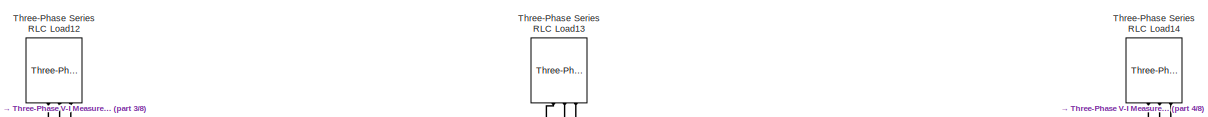
[diagram: root canvas - part 1/8, top center region]
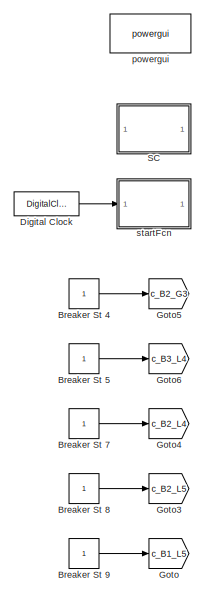
[diagram: root canvas - part 2/8, top left region]
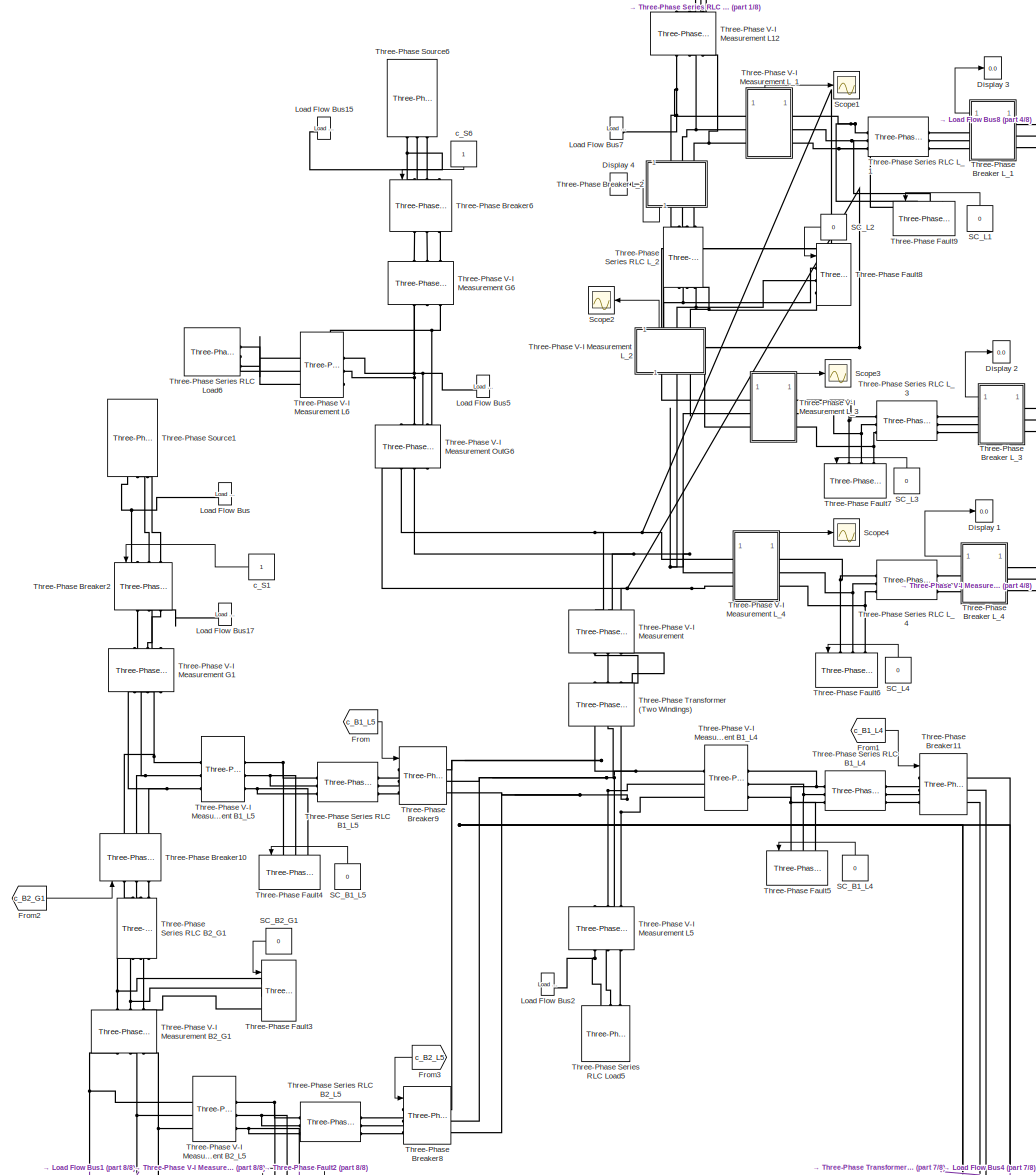
[diagram: root canvas - part 3/8, central region]
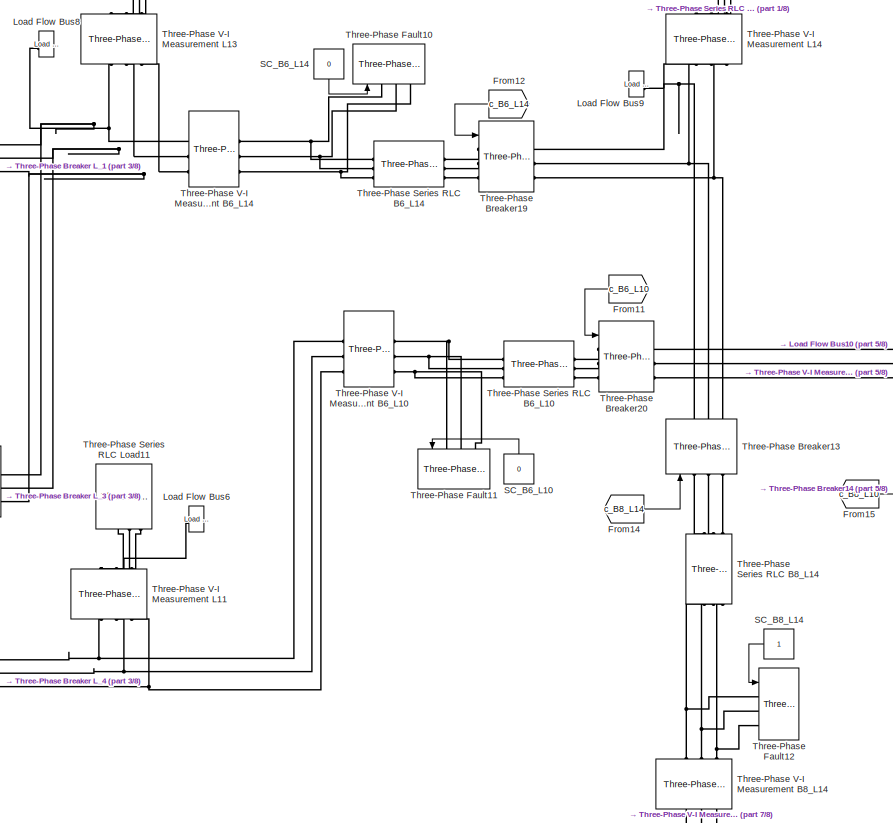
[diagram: root canvas - part 4/8, top right region]
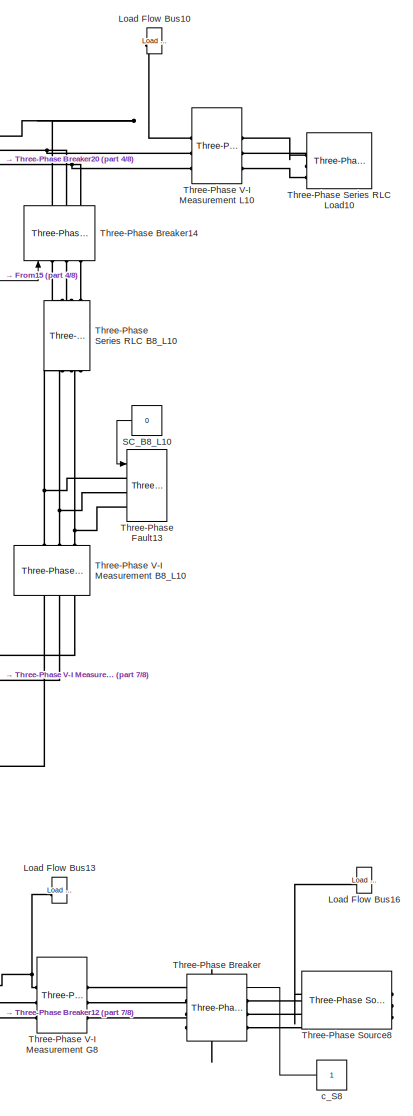
[diagram: root canvas - part 5/8, middle right region]
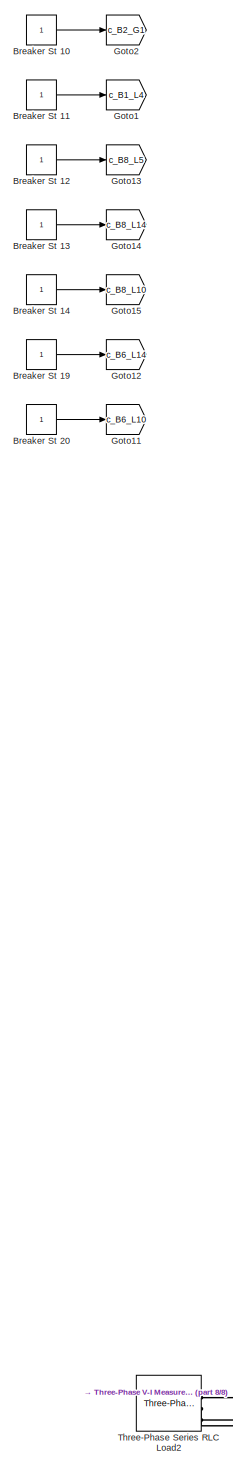
[diagram: root canvas - part 6/8, middle left region]
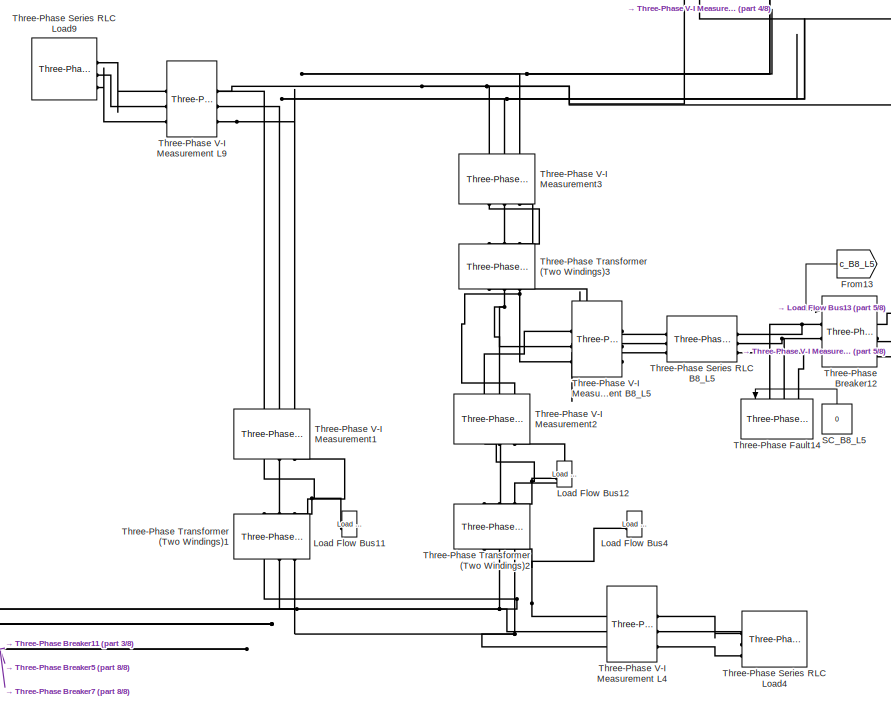
[diagram: root canvas - part 7/8, middle right region]
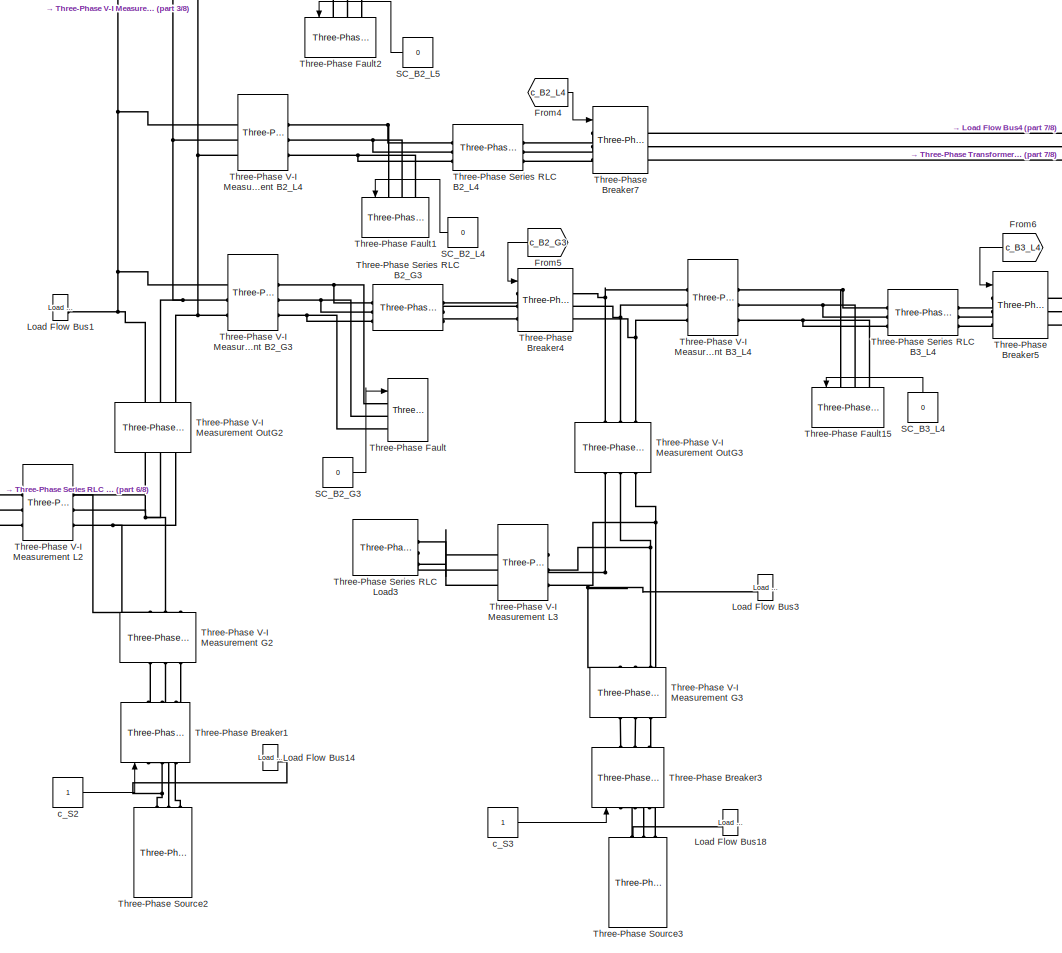
[diagram: root canvas - part 8/8, bottom left region]
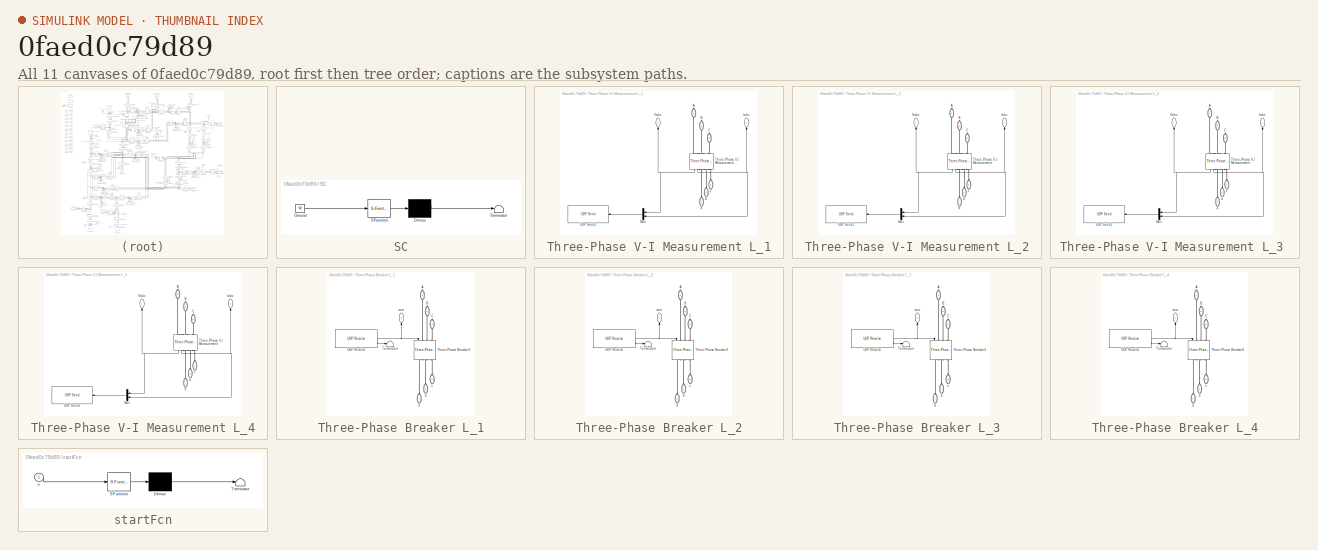
[diagram: thumbnail index - all 11 canvases of the model, root first then tree order]
MODEL slx_0faed0c79d89
KIND model
CONFIG AbsTol = auto
CONFIG EnableMultiTasking = off
CONFIG FixedStep = 1e-3
CONFIG MaxStep = 1e-4
CONFIG MinStep = auto
CONFIG RelTol = 1e-3
CONFIG SampleTimeConstraint = Unconstrained
CONFIG SolverName = ode1
CONFIG StartTime = 0.0
CONFIG StopTime = 600
WORKSPACE source: mxarray member
WORKSPACE pruebaValor = 0
BLOCK [Constant] Breaker St 10
BLOCK [Constant] Breaker St 11
BLOCK [Constant] Breaker St 12
BLOCK [Constant] Breaker St 13
BLOCK [Constant] Breaker St 14
BLOCK [Constant] Breaker St 19
BLOCK [Constant] Breaker St 20
BLOCK [Constant] Breaker St 4
BLOCK [Constant] Breaker St 5
BLOCK [Constant] Breaker St 7
BLOCK [Constant] Breaker St 8
BLOCK [Constant] Breaker St 9
BLOCK [DigitalClock] Digital Clock
  SampleTime = 1e-1
BLOCK [Display] Display 1
  Decimation = 1
  Format = decimal (Stored Integer)
BLOCK [Display] Display 2
  Decimation = 1
  Format = decimal (Stored Integer)
BLOCK [Display] Display 3
  Decimation = 1
  Format = decimal (Stored Integer)
BLOCK [Display] Display 4
  Decimation = 1
  Format = decimal (Stored Integer)
BLOCK [From] From
  GotoTag = c_B1_L5
BLOCK [From] From1
  GotoTag = c_B1_L4
BLOCK [From] From11
  GotoTag = c_B6_L10
  NameLocation = top
BLOCK [From] From12
  GotoTag = c_B6_L14
  NameLocation = top
BLOCK [From] From13
  GotoTag = c_B8_L5
  NameLocation = top
BLOCK [From] From14
  GotoTag = c_B8_L14
BLOCK [From] From15
  GotoTag = c_B8_L10
BLOCK [From] From2
  GotoTag = c_B2_G1
BLOCK [From] From3
  GotoTag = c_B2_L5
  NameLocation = top
BLOCK [From] From4
  GotoTag = c_B2_L4
BLOCK [From] From5
  GotoTag = c_B2_G3
  NameLocation = top
BLOCK [From] From6
  GotoTag = c_B3_L4
  NameLocation = top
BLOCK [Goto] Goto
  GotoTag = c_B1_L5
BLOCK [Goto] Goto1
  GotoTag = c_B1_L4
BLOCK [Goto] Goto11
  GotoTag = c_B6_L10
BLOCK [Goto] Goto12
  GotoTag = c_B6_L14
BLOCK [Goto] Goto13
  GotoTag = c_B8_L5
BLOCK [Goto] Goto14
  GotoTag = c_B8_L14
BLOCK [Goto] Goto15
  GotoTag = c_B8_L10
BLOCK [Goto] Goto2
  GotoTag = c_B2_G1
BLOCK [Goto] Goto3
  GotoTag = c_B2_L5
BLOCK [Goto] Goto4
  GotoTag = c_B2_L4
BLOCK [Goto] Goto5
  GotoTag = c_B2_G3
BLOCK [Goto] Goto6
  GotoTag = c_B3_L4
BLOCK [Reference] Load Flow Bus  REF=spsLoadFlowBusLib/Load Flow Bus
  AttributesFormatString = %<ID>\n%<Vbase>V\n%<VLF>pu\n%<angleLF>deg.
  LibrarySourceBlock = sps_lib/Utilities/Load Flow Bus
  SourceBlock = spsLoadFlowBusLib/Load Flow Bus
  SourceType = Load Flow Bus
BLOCK [Reference] Load Flow Bus1  REF=spsLoadFlowBusLib/Load Flow Bus
  AttributesFormatString = %<ID>\n%<Vbase>V\n%<VLF>pu\n%<angleLF>deg.
  LibrarySourceBlock = sps_lib/Utilities/Load Flow Bus
  NameLocation = top
  SourceBlock = spsLoadFlowBusLib/Load Flow Bus
  SourceType = Load Flow Bus
BLOCK [Reference] Load Flow Bus10  REF=spsLoadFlowBusLib/Load Flow Bus
  AttributesFormatString = %<ID>\n%<Vbase>V\n%<VLF>pu\n%<angleLF>deg.
  LibrarySourceBlock = sps_lib/Utilities/Load Flow Bus
  SourceBlock = spsLoadFlowBusLib/Load Flow Bus
  SourceType = Load Flow Bus
BLOCK [Reference] Load Flow Bus11  REF=spsLoadFlowBusLib/Load Flow Bus
  AttributesFormatString = %<ID>\n%<Vbase>V\n%<VLF>pu\n%<angleLF>deg.
  LibrarySourceBlock = sps_lib/Utilities/Load Flow Bus
  SourceBlock = spsLoadFlowBusLib/Load Flow Bus
  SourceType = Load Flow Bus
BLOCK [Reference] Load Flow Bus12  REF=spsLoadFlowBusLib/Load Flow Bus
  AttributesFormatString = %<ID>\n%<Vbase>V\n%<VLF>pu\n%<angleLF>deg.
  LibrarySourceBlock = sps_lib/Utilities/Load Flow Bus
  SourceBlock = spsLoadFlowBusLib/Load Flow Bus
  SourceType = Load Flow Bus
BLOCK [Reference] Load Flow Bus13  REF=spsLoadFlowBusLib/Load Flow Bus
  AttributesFormatString = %<ID>\n%<Vbase>V\n%<VLF>pu\n%<angleLF>deg.
  LibrarySourceBlock = sps_lib/Utilities/Load Flow Bus
  SourceBlock = spsLoadFlowBusLib/Load Flow Bus
  SourceType = Load Flow Bus
BLOCK [Reference] Load Flow Bus14  REF=spsLoadFlowBusLib/Load Flow Bus
  AttributesFormatString = %<ID>\n%<Vbase>V\n%<VLF>pu\n%<angleLF>deg.
  LibrarySourceBlock = sps_lib/Utilities/Load Flow Bus
  NameLocation = top
  SourceBlock = spsLoadFlowBusLib/Load Flow Bus
  SourceType = Load Flow Bus
BLOCK [Reference] Load Flow Bus15  REF=spsLoadFlowBusLib/Load Flow Bus
  AttributesFormatString = %<ID>\n%<Vbase>V\n%<VLF>pu\n%<angleLF>deg.
  LibrarySourceBlock = sps_lib/Utilities/Load Flow Bus
  SourceBlock = spsLoadFlowBusLib/Load Flow Bus
  SourceType = Load Flow Bus
BLOCK [Reference] Load Flow Bus16  REF=spsLoadFlowBusLib/Load Flow Bus
  AttributesFormatString = %<ID>\n%<Vbase>V\n%<VLF>pu\n%<angleLF>deg.
  LibrarySourceBlock = sps_lib/Utilities/Load Flow Bus
  SourceBlock = spsLoadFlowBusLib/Load Flow Bus
  SourceType = Load Flow Bus
BLOCK [Reference] Load Flow Bus17  REF=spsLoadFlowBusLib/Load Flow Bus
  AttributesFormatString = %<ID>\n%<Vbase>V\n%<VLF>pu\n%<angleLF>deg.
  LibrarySourceBlock = sps_lib/Utilities/Load Flow Bus
  SourceBlock = spsLoadFlowBusLib/Load Flow Bus
  SourceType = Load Flow Bus
BLOCK [Reference] Load Flow Bus18  REF=spsLoadFlowBusLib/Load Flow Bus
  AttributesFormatString = %<ID>\n%<Vbase>V\n%<VLF>pu\n%<angleLF>deg.
  LibrarySourceBlock = sps_lib/Utilities/Load Flow Bus
  SourceBlock = spsLoadFlowBusLib/Load Flow Bus
  SourceType = Load Flow Bus
BLOCK [Reference] Load Flow Bus2  REF=spsLoadFlowBusLib/Load Flow Bus
  AttributesFormatString = %<ID>\n%<Vbase>V\n%<VLF>pu\n%<angleLF>deg.
  LibrarySourceBlock = sps_lib/Utilities/Load Flow Bus
  NameLocation = top
  SourceBlock = spsLoadFlowBusLib/Load Flow Bus
  SourceType = Load Flow Bus
BLOCK [Reference] Load Flow Bus3  REF=spsLoadFlowBusLib/Load Flow Bus
  AttributesFormatString = %<ID>\n%<Vbase>V\n%<VLF>pu\n%<angleLF>deg.
  LibrarySourceBlock = sps_lib/Utilities/Load Flow Bus
  SourceBlock = spsLoadFlowBusLib/Load Flow Bus
  SourceType = Load Flow Bus
BLOCK [Reference] Load Flow Bus4  REF=spsLoadFlowBusLib/Load Flow Bus
  AttributesFormatString = %<ID>\n%<Vbase>V\n%<VLF>pu\n%<angleLF>deg.
  LibrarySourceBlock = sps_lib/Utilities/Load Flow Bus
  SourceBlock = spsLoadFlowBusLib/Load Flow Bus
  SourceType = Load Flow Bus
BLOCK [Reference] Load Flow Bus5  REF=spsLoadFlowBusLib/Load Flow Bus
  AttributesFormatString = %<ID>\n%<Vbase>V\n%<VLF>pu\n%<angleLF>deg.
  LibrarySourceBlock = sps_lib/Utilities/Load Flow Bus
  SourceBlock = spsLoadFlowBusLib/Load Flow Bus
  SourceType = Load Flow Bus
BLOCK [Reference] Load Flow Bus6  REF=spsLoadFlowBusLib/Load Flow Bus
  AttributesFormatString = %<ID>\n%<Vbase>V\n%<VLF>pu\n%<angleLF>deg.
  LibrarySourceBlock = sps_lib/Utilities/Load Flow Bus
  SourceBlock = spsLoadFlowBusLib/Load Flow Bus
  SourceType = Load Flow Bus
BLOCK [Reference] Load Flow Bus7  REF=spsLoadFlowBusLib/Load Flow Bus
  AttributesFormatString = %<ID>\n%<Vbase>V\n%<VLF>pu\n%<angleLF>deg.
  LibrarySourceBlock = sps_lib/Utilities/Load Flow Bus
  NameLocation = top
  SourceBlock = spsLoadFlowBusLib/Load Flow Bus
  SourceType = Load Flow Bus
BLOCK [Reference] Load Flow Bus8  REF=spsLoadFlowBusLib/Load Flow Bus
  AttributesFormatString = %<ID>\n%<Vbase>V\n%<VLF>pu\n%<angleLF>deg.
  LibrarySourceBlock = sps_lib/Utilities/Load Flow Bus
  SourceBlock = spsLoadFlowBusLib/Load Flow Bus
  SourceType = Load Flow Bus
BLOCK [Reference] Load Flow Bus9  REF=spsLoadFlowBusLib/Load Flow Bus
  AttributesFormatString = %<ID>\n%<Vbase>V\n%<VLF>pu\n%<angleLF>deg.
  LibrarySourceBlock = sps_lib/Utilities/Load Flow Bus
  NameLocation = top
  SourceBlock = spsLoadFlowBusLib/Load Flow Bus
  SourceType = Load Flow Bus
BLOCK [SubSystem] SC
  ErrorFcn = Stateflow.Translate.translate
  PermitHierarchicalResolution = ExplicitOnly
  SFBlockType = MATLAB Function
  TreatAsAtomicUnit = on
BLOCK [Demux] SC/ Demux 
  Outputs = 1
BLOCK [Ground] SC/ Ground 
BLOCK [S-Function] SC/ SFunction 
  EnableBusSupport = on
  FunctionName = sf_sfun
  PortCounts = [1 1]
  SFcnIsStateOwnerBlock = off
  SFunctionDeploymentMode = off
  Tag = Stateflow S-Function 1
BLOCK [Terminator] SC/ Terminator 
BLOCK [Constant] SC_B1_L4
  NameLocation = right
  Value = 0
BLOCK [Constant] SC_B1_L5
  NameLocation = right
  Value = 0
BLOCK [Constant] SC_B2_G1
  NameLocation = top
  Value = 0
BLOCK [Constant] SC_B2_G3
  Value = 0
BLOCK [Constant] SC_B2_L4
  NameLocation = top
  Value = 0
BLOCK [Constant] SC_B2_L5
  NameLocation = top
  Value = 0
BLOCK [Constant] SC_B3_L4
  NameLocation = right
  Value = 0
BLOCK [Constant] SC_B6_L10
  NameLocation = right
  Value = 0
BLOCK [Constant] SC_B6_L14
  NameLocation = left
  Value = 0
BLOCK [Constant] SC_B8_L10
  NameLocation = top
  Value = 0
BLOCK [Constant] SC_B8_L14
  NameLocation = top
BLOCK [Constant] SC_B8_L5
  NameLocation = right
  Value = 0
BLOCK [Constant] SC_L1
  NameLocation = right
  Value = 0
BLOCK [Constant] SC_L2
  NameLocation = top
  Value = 0
BLOCK [Constant] SC_L3
  NameLocation = right
  Value = 0
BLOCK [Constant] SC_L4
  NameLocation = right
  Value = 0
BLOCK [Scope] Scope1
  Floating = off
  NumInputPorts = 1
  ScopeSpecificationString = Simulink.scopes.TimeScopeBlockCfg('CurrentConfiguration', extmgr.ConfigurationSet(extmgr.Configuration('Core','General UI',true),extmgr.Configuration('Core','Source UI',true),extmgr.Configuration('Sources','WiredSimulink',true,'DataLoggingVariableName','ScopeData4'),extmgr.Configuration('Visuals','Time Domain',true,'SerializedDisplays',{struct('MinYLimReal','-343.20446','MaxYLimReal','341.61736','...<+1569ch>
BLOCK [Scope] Scope2
  Floating = off
  NumInputPorts = 1
  ScopeSpecificationString = Simulink.scopes.TimeScopeBlockCfg('CurrentConfiguration', extmgr.ConfigurationSet(extmgr.Configuration('Core','General UI',true),extmgr.Configuration('Core','Source UI',true),extmgr.Configuration('Sources','WiredSimulink',true,'DataLoggingVariableName','ScopeData1'),extmgr.Configuration('Visuals','Time Domain',true,'SerializedDisplays',{struct('MinYLimReal','-2113.17792','MaxYLimReal','2445.32512'...<+1610ch>
BLOCK [Scope] Scope3
  Floating = off
  NumInputPorts = 1
  ScopeSpecificationString = Simulink.scopes.TimeScopeBlockCfg('CurrentConfiguration', extmgr.ConfigurationSet(extmgr.Configuration('Core','General UI',true),extmgr.Configuration('Core','Source UI',true),extmgr.Configuration('Sources','WiredSimulink',true,'DataLoggingVariableName','ScopeData2'),extmgr.Configuration('Visuals','Time Domain',true,'SerializedDisplays',{struct('MinYLimReal','-2113.17792','MaxYLimReal','2445.32512'...<+1610ch>
BLOCK [Scope] Scope4
  Floating = off
  NumInputPorts = 1
  ScopeSpecificationString = Simulink.scopes.TimeScopeBlockCfg('CurrentConfiguration', extmgr.ConfigurationSet(extmgr.Configuration('Core','General UI',true),extmgr.Configuration('Core','Source UI',true),extmgr.Configuration('Sources','WiredSimulink',true,'DataLoggingVariableName','ScopeData3'),extmgr.Configuration('Visuals','Time Domain',true,'SerializedDisplays',{struct('MinYLimReal','-2113.17792','MaxYLimReal','2445.32512'...<+1610ch>
BLOCK [Reference] Three-Phase Breaker  REF=spsThreePhaseBreakerLib/Three-Phase Breaker
  LibrarySourceBlock = sps_lib/Power Grid Elements/Three-Phase Breaker
  NameLocation = top
  SourceBlock = spsThreePhaseBreakerLib/Three-Phase Breaker
  SourceType = Three-Phase Breaker
BLOCK [SubSystem] Three-Phase Breaker L_1
BLOCK [PMIOPort] Three-Phase Breaker L_1/A
  NameLocation = right
  Port = 4
  Side = Right
BLOCK [PMIOPort] Three-Phase Breaker L_1/B
  NameLocation = right
  Port = 5
  Side = Right
BLOCK [PMIOPort] Three-Phase Breaker L_1/C
  NameLocation = right
  Port = 6
  Side = Right
BLOCK [Terminator] Three-Phase Breaker L_1/Terminator
BLOCK [Reference] Three-Phase Breaker L_1/Three-Phase Breaker3  REF=spsThreePhaseBreakerLib/Three-Phase Breaker
  NameLocation = right
  SourceBlock = spsThreePhaseBreakerLib/Three-Phase Breaker
  SourceType = Three-Phase Breaker
BLOCK [Reference] Three-Phase Breaker L_1/UDP Receive  REF=instrumentlib/UDP Receive
  SourceBlock = instrumentlib/UDP Receive
  SourceType = instrument.system.UDPReceive
BLOCK [PMIOPort] Three-Phase Breaker L_1/a
  NameLocation = right
  Side = Left
BLOCK [PMIOPort] Three-Phase Breaker L_1/b
  NameLocation = right
  Port = 2
  Side = Left
BLOCK [PMIOPort] Three-Phase Breaker L_1/c
  NameLocation = right
  Port = 3
  Side = Left
BLOCK [Outport] Three-Phase Breaker L_1/com
  NameLocation = right
BLOCK [SubSystem] Three-Phase Breaker L_2
  NameLocation = right
BLOCK [PMIOPort] Three-Phase Breaker L_2/A
  NameLocation = right
  Port = 4
  Side = Right
BLOCK [PMIOPort] Three-Phase Breaker L_2/B
  NameLocation = right
  Port = 5
  Side = Right
BLOCK [PMIOPort] Three-Phase Breaker L_2/C
  NameLocation = right
  Port = 6
  Side = Right
BLOCK [Terminator] Three-Phase Breaker L_2/Terminator
BLOCK [Reference] Three-Phase Breaker L_2/Three-Phase Breaker3  REF=spsThreePhaseBreakerLib/Three-Phase Breaker
  NameLocation = right
  SourceBlock = spsThreePhaseBreakerLib/Three-Phase Breaker
  SourceType = Three-Phase Breaker
BLOCK [Reference] Three-Phase Breaker L_2/UDP Receive  REF=instrumentlib/UDP Receive
  SourceBlock = instrumentlib/UDP Receive
  SourceType = instrument.system.UDPReceive
BLOCK [PMIOPort] Three-Phase Breaker L_2/a
  NameLocation = right
  Side = Left
BLOCK [PMIOPort] Three-Phase Breaker L_2/b
  NameLocation = right
  Port = 2
  Side = Left
BLOCK [PMIOPort] Three-Phase Breaker L_2/c
  NameLocation = right
  Port = 3
  Side = Left
BLOCK [Outport] Three-Phase Breaker L_2/com
  NameLocation = right
BLOCK [SubSystem] Three-Phase Breaker L_3
BLOCK [PMIOPort] Three-Phase Breaker L_3/A
  NameLocation = right
  Port = 4
  Side = Right
BLOCK [PMIOPort] Three-Phase Breaker L_3/B
  NameLocation = right
  Port = 5
  Side = Right
BLOCK [PMIOPort] Three-Phase Breaker L_3/C
  NameLocation = right
  Port = 6
  Side = Right
BLOCK [Terminator] Three-Phase Breaker L_3/Terminator
BLOCK [Reference] Three-Phase Breaker L_3/Three-Phase Breaker3  REF=spsThreePhaseBreakerLib/Three-Phase Breaker
  NameLocation = right
  SourceBlock = spsThreePhaseBreakerLib/Three-Phase Breaker
  SourceType = Three-Phase Breaker
BLOCK [Reference] Three-Phase Breaker L_3/UDP Receive  REF=instrumentlib/UDP Receive
  SourceBlock = instrumentlib/UDP Receive
  SourceType = instrument.system.UDPReceive
BLOCK [PMIOPort] Three-Phase Breaker L_3/a
  NameLocation = right
  Side = Left
BLOCK [PMIOPort] Three-Phase Breaker L_3/b
  NameLocation = right
  Port = 2
  Side = Left
BLOCK [PMIOPort] Three-Phase Breaker L_3/c
  NameLocation = right
  Port = 3
  Side = Left
BLOCK [Outport] Three-Phase Breaker L_3/com
  NameLocation = right
BLOCK [SubSystem] Three-Phase Breaker L_4
  NameLocation = top
BLOCK [PMIOPort] Three-Phase Breaker L_4/A
  NameLocation = right
  Port = 4
  Side = Right
BLOCK [PMIOPort] Three-Phase Breaker L_4/B
  NameLocation = right
  Port = 5
  Side = Right
BLOCK [PMIOPort] Three-Phase Breaker L_4/C
  NameLocation = right
  Port = 6
  Side = Right
BLOCK [Terminator] Three-Phase Breaker L_4/Terminator
BLOCK [Reference] Three-Phase Breaker L_4/Three-Phase Breaker3  REF=spsThreePhaseBreakerLib/Three-Phase Breaker
  NameLocation = right
  SourceBlock = spsThreePhaseBreakerLib/Three-Phase Breaker
  SourceType = Three-Phase Breaker
BLOCK [Reference] Three-Phase Breaker L_4/UDP Receive  REF=instrumentlib/UDP Receive
  SourceBlock = instrumentlib/UDP Receive
  SourceType = instrument.system.UDPReceive
BLOCK [PMIOPort] Three-Phase Breaker L_4/a
  NameLocation = right
  Side = Left
BLOCK [PMIOPort] Three-Phase Breaker L_4/b
  NameLocation = right
  Port = 2
  Side = Left
BLOCK [PMIOPort] Three-Phase Breaker L_4/c
  NameLocation = right
  Port = 3
  Side = Left
BLOCK [Outport] Three-Phase Breaker L_4/com
  NameLocation = right
BLOCK [Reference] Three-Phase Breaker1  REF=spsThreePhaseBreakerLib/Three-Phase Breaker
  LibrarySourceBlock = sps_lib/Power Grid Elements/Three-Phase Breaker
  NameLocation = right
  SourceBlock = spsThreePhaseBreakerLib/Three-Phase Breaker
  SourceType = Three-Phase Breaker
BLOCK [Reference] Three-Phase Breaker10  REF=spsThreePhaseBreakerLib/Three-Phase Breaker
  LibrarySourceBlock = sps_lib/Power Grid Elements/Three-Phase Breaker
  NameLocation = right
  SourceBlock = spsThreePhaseBreakerLib/Three-Phase Breaker
  SourceType = Three-Phase Breaker
BLOCK [Reference] Three-Phase Breaker11  REF=spsThreePhaseBreakerLib/Three-Phase Breaker
  LibrarySourceBlock = sps_lib/Power Grid Elements/Three-Phase Breaker
  SourceBlock = spsThreePhaseBreakerLib/Three-Phase Breaker
  SourceType = Three-Phase Breaker
BLOCK [Reference] Three-Phase Breaker12  REF=spsThreePhaseBreakerLib/Three-Phase Breaker
  LibrarySourceBlock = sps_lib/Power Grid Elements/Three-Phase Breaker
  SourceBlock = spsThreePhaseBreakerLib/Three-Phase Breaker
  SourceType = Three-Phase Breaker
BLOCK [Reference] Three-Phase Breaker13  REF=spsThreePhaseBreakerLib/Three-Phase Breaker
  LibrarySourceBlock = sps_lib/Power Grid Elements/Three-Phase Breaker
  NameLocation = right
  SourceBlock = spsThreePhaseBreakerLib/Three-Phase Breaker
  SourceType = Three-Phase Breaker
BLOCK [Reference] Three-Phase Breaker14  REF=spsThreePhaseBreakerLib/Three-Phase Breaker
  LibrarySourceBlock = sps_lib/Power Grid Elements/Three-Phase Breaker
  NameLocation = right
  SourceBlock = spsThreePhaseBreakerLib/Three-Phase Breaker
  SourceType = Three-Phase Breaker
BLOCK [Reference] Three-Phase Breaker19  REF=spsThreePhaseBreakerLib/Three-Phase Breaker
  LibrarySourceBlock = sps_lib/Power Grid Elements/Three-Phase Breaker
  SourceBlock = spsThreePhaseBreakerLib/Three-Phase Breaker
  SourceType = Three-Phase Breaker
BLOCK [Reference] Three-Phase Breaker2  REF=spsThreePhaseBreakerLib/Three-Phase Breaker
  LibrarySourceBlock = sps_lib/Power Grid Elements/Three-Phase Breaker
  NameLocation = left
  SourceBlock = spsThreePhaseBreakerLib/Three-Phase Breaker
  SourceType = Three-Phase Breaker
BLOCK [Reference] Three-Phase Breaker20  REF=spsThreePhaseBreakerLib/Three-Phase Breaker
  LibrarySourceBlock = sps_lib/Power Grid Elements/Three-Phase Breaker
  SourceBlock = spsThreePhaseBreakerLib/Three-Phase Breaker
  SourceType = Three-Phase Breaker
BLOCK [Reference] Three-Phase Breaker3  REF=spsThreePhaseBreakerLib/Three-Phase Breaker
  LibrarySourceBlock = sps_lib/Power Grid Elements/Three-Phase Breaker
  NameLocation = right
  SourceBlock = spsThreePhaseBreakerLib/Three-Phase Breaker
  SourceType = Three-Phase Breaker
BLOCK [Reference] Three-Phase Breaker4  REF=spsThreePhaseBreakerLib/Three-Phase Breaker
  LibrarySourceBlock = sps_lib/Power Grid Elements/Three-Phase Breaker
  SourceBlock = spsThreePhaseBreakerLib/Three-Phase Breaker
  SourceType = Three-Phase Breaker
BLOCK [Reference] Three-Phase Breaker5  REF=spsThreePhaseBreakerLib/Three-Phase Breaker
  LibrarySourceBlock = sps_lib/Power Grid Elements/Three-Phase Breaker
  SourceBlock = spsThreePhaseBreakerLib/Three-Phase Breaker
  SourceType = Three-Phase Breaker
BLOCK [Reference] Three-Phase Breaker6  REF=spsThreePhaseBreakerLib/Three-Phase Breaker
  LibrarySourceBlock = sps_lib/Power Grid Elements/Three-Phase Breaker
  NameLocation = left
  SourceBlock = spsThreePhaseBreakerLib/Three-Phase Breaker
  SourceType = Three-Phase Breaker
BLOCK [Reference] Three-Phase Breaker7  REF=spsThreePhaseBreakerLib/Three-Phase Breaker
  LibrarySourceBlock = sps_lib/Power Grid Elements/Three-Phase Breaker
  SourceBlock = spsThreePhaseBreakerLib/Three-Phase Breaker
  SourceType = Three-Phase Breaker
BLOCK [Reference] Three-Phase Breaker8  REF=spsThreePhaseBreakerLib/Three-Phase Breaker
  LibrarySourceBlock = sps_lib/Power Grid Elements/Three-Phase Breaker
  SourceBlock = spsThreePhaseBreakerLib/Three-Phase Breaker
  SourceType = Three-Phase Breaker
BLOCK [Reference] Three-Phase Breaker9  REF=spsThreePhaseBreakerLib/Three-Phase Breaker
  LibrarySourceBlock = sps_lib/Power Grid Elements/Three-Phase Breaker
  SourceBlock = spsThreePhaseBreakerLib/Three-Phase Breaker
  SourceType = Three-Phase Breaker
BLOCK [Reference] Three-Phase Fault  REF=spsThreePhaseFaultLib/Three-Phase Fault
  LibrarySourceBlock = sps_lib/Power Grid Elements/Three-Phase Fault
  SourceBlock = spsThreePhaseFaultLib/Three-Phase Fault
  SourceType = Three-Phase Fault
BLOCK [Reference] Three-Phase Fault1  REF=spsThreePhaseFaultLib/Three-Phase Fault
  LibrarySourceBlock = sps_lib/Power Grid Elements/Three-Phase Fault
  NameLocation = left
  SourceBlock = spsThreePhaseFaultLib/Three-Phase Fault
  SourceType = Three-Phase Fault
BLOCK [Reference] Three-Phase Fault10  REF=spsThreePhaseFaultLib/Three-Phase Fault
  LibrarySourceBlock = sps_lib/Power Grid Elements/Three-Phase Fault
  NameLocation = right
  SourceBlock = spsThreePhaseFaultLib/Three-Phase Fault
  SourceType = Three-Phase Fault
BLOCK [Reference] Three-Phase Fault11  REF=spsThreePhaseFaultLib/Three-Phase Fault
  LibrarySourceBlock = sps_lib/Power Grid Elements/Three-Phase Fault
  NameLocation = left
  SourceBlock = spsThreePhaseFaultLib/Three-Phase Fault
  SourceType = Three-Phase Fault
BLOCK [Reference] Three-Phase Fault12  REF=spsThreePhaseFaultLib/Three-Phase Fault
  LibrarySourceBlock = sps_lib/Power Grid Elements/Three-Phase Fault
  SourceBlock = spsThreePhaseFaultLib/Three-Phase Fault
  SourceType = Three-Phase Fault
BLOCK [Reference] Three-Phase Fault13  REF=spsThreePhaseFaultLib/Three-Phase Fault
  LibrarySourceBlock = sps_lib/Power Grid Elements/Three-Phase Fault
  SourceBlock = spsThreePhaseFaultLib/Three-Phase Fault
  SourceType = Three-Phase Fault
BLOCK [Reference] Three-Phase Fault14  REF=spsThreePhaseFaultLib/Three-Phase Fault
  LibrarySourceBlock = sps_lib/Power Grid Elements/Three-Phase Fault
  NameLocation = left
  SourceBlock = spsThreePhaseFaultLib/Three-Phase Fault
  SourceType = Three-Phase Fault
BLOCK [Reference] Three-Phase Fault15  REF=spsThreePhaseFaultLib/Three-Phase Fault
  LibrarySourceBlock = sps_lib/Power Grid Elements/Three-Phase Fault
  NameLocation = left
  SourceBlock = spsThreePhaseFaultLib/Three-Phase Fault
  SourceType = Three-Phase Fault
BLOCK [Reference] Three-Phase Fault2  REF=spsThreePhaseFaultLib/Three-Phase Fault
  LibrarySourceBlock = sps_lib/Power Grid Elements/Three-Phase Fault
  NameLocation = left
  SourceBlock = spsThreePhaseFaultLib/Three-Phase Fault
  SourceType = Three-Phase Fault
BLOCK [Reference] Three-Phase Fault3  REF=spsThreePhaseFaultLib/Three-Phase Fault
  LibrarySourceBlock = sps_lib/Power Grid Elements/Three-Phase Fault
  SourceBlock = spsThreePhaseFaultLib/Three-Phase Fault
  SourceType = Three-Phase Fault
BLOCK [Reference] Three-Phase Fault4  REF=spsThreePhaseFaultLib/Three-Phase Fault
  LibrarySourceBlock = sps_lib/Power Grid Elements/Three-Phase Fault
  NameLocation = left
  SourceBlock = spsThreePhaseFaultLib/Three-Phase Fault
  SourceType = Three-Phase Fault
BLOCK [Reference] Three-Phase Fault5  REF=spsThreePhaseFaultLib/Three-Phase Fault
  LibrarySourceBlock = sps_lib/Power Grid Elements/Three-Phase Fault
  NameLocation = left
  SourceBlock = spsThreePhaseFaultLib/Three-Phase Fault
  SourceType = Three-Phase Fault
BLOCK [Reference] Three-Phase Fault6  REF=spsThreePhaseFaultLib/Three-Phase Fault
  LibrarySourceBlock = sps_lib/Power Grid Elements/Three-Phase Fault
  NameLocation = left
  SourceBlock = spsThreePhaseFaultLib/Three-Phase Fault
  SourceType = Three-Phase Fault
BLOCK [Reference] Three-Phase Fault7  REF=spsThreePhaseFaultLib/Three-Phase Fault
  LibrarySourceBlock = sps_lib/Power Grid Elements/Three-Phase Fault
  NameLocation = left
  SourceBlock = spsThreePhaseFaultLib/Three-Phase Fault
  SourceType = Three-Phase Fault
BLOCK [Reference] Three-Phase Fault8  REF=spsThreePhaseFaultLib/Three-Phase Fault
  LibrarySourceBlock = sps_lib/Power Grid Elements/Three-Phase Fault
  SourceBlock = spsThreePhaseFaultLib/Three-Phase Fault
  SourceType = Three-Phase Fault
BLOCK [Reference] Three-Phase Fault9  REF=spsThreePhaseFaultLib/Three-Phase Fault
  LibrarySourceBlock = sps_lib/Power Grid Elements/Three-Phase Fault
  NameLocation = left
  SourceBlock = spsThreePhaseFaultLib/Three-Phase Fault
  SourceType = Three-Phase Fault
BLOCK [Reference] Three-Phase Series RLC B1_L4  REF=spsThreePhaseSeriesRLCBranchLib/Three-Phase
Series RLC Branch
  AttributesFormatString = \n
  LibrarySourceBlock = sps_lib/Passives/Three-Phase\nSeries RLC Branch
  SourceBlock = spsThreePhaseSeriesRLCBranchLib/Three-Phase\nSeries RLC Branch
  SourceType = Three-Phase Series RLC Branch
BLOCK [Reference] Three-Phase Series RLC B1_L5  REF=spsThreePhaseSeriesRLCBranchLib/Three-Phase
Series RLC Branch
  AttributesFormatString = \n
  LibrarySourceBlock = sps_lib/Passives/Three-Phase\nSeries RLC Branch
  SourceBlock = spsThreePhaseSeriesRLCBranchLib/Three-Phase\nSeries RLC Branch
  SourceType = Three-Phase Series RLC Branch
BLOCK [Reference] Three-Phase Series RLC B2_G1  REF=spsThreePhaseSeriesRLCBranchLib/Three-Phase
Series RLC Branch
  AttributesFormatString = \n
  LibrarySourceBlock = sps_lib/Passives/Three-Phase\nSeries RLC Branch
  NameLocation = right
  SourceBlock = spsThreePhaseSeriesRLCBranchLib/Three-Phase\nSeries RLC Branch
  SourceType = Three-Phase Series RLC Branch
BLOCK [Reference] Three-Phase Series RLC B2_G3  REF=spsThreePhaseSeriesRLCBranchLib/Three-Phase
Series RLC Branch
  AttributesFormatString = \n
  LibrarySourceBlock = sps_lib/Passives/Three-Phase\nSeries RLC Branch
  SourceBlock = spsThreePhaseSeriesRLCBranchLib/Three-Phase\nSeries RLC Branch
  SourceType = Three-Phase Series RLC Branch
BLOCK [Reference] Three-Phase Series RLC B2_L4  REF=spsThreePhaseSeriesRLCBranchLib/Three-Phase
Series RLC Branch
  AttributesFormatString = \n
  LibrarySourceBlock = sps_lib/Passives/Three-Phase\nSeries RLC Branch
  SourceBlock = spsThreePhaseSeriesRLCBranchLib/Three-Phase\nSeries RLC Branch
  SourceType = Three-Phase Series RLC Branch
BLOCK [Reference] Three-Phase Series RLC B2_L5  REF=spsThreePhaseSeriesRLCBranchLib/Three-Phase
Series RLC Branch
  AttributesFormatString = \n
  LibrarySourceBlock = sps_lib/Passives/Three-Phase\nSeries RLC Branch
  SourceBlock = spsThreePhaseSeriesRLCBranchLib/Three-Phase\nSeries RLC Branch
  SourceType = Three-Phase Series RLC Branch
BLOCK [Reference] Three-Phase Series RLC B3_L4  REF=spsThreePhaseSeriesRLCBranchLib/Three-Phase
Series RLC Branch
  AttributesFormatString = \n
  LibrarySourceBlock = sps_lib/Passives/Three-Phase\nSeries RLC Branch
  SourceBlock = spsThreePhaseSeriesRLCBranchLib/Three-Phase\nSeries RLC Branch
  SourceType = Three-Phase Series RLC Branch
BLOCK [Reference] Three-Phase Series RLC B6_L10  REF=spsThreePhaseSeriesRLCBranchLib/Three-Phase
Series RLC Branch
  AttributesFormatString = \n
  LibrarySourceBlock = sps_lib/Passives/Three-Phase\nSeries RLC Branch
  SourceBlock = spsThreePhaseSeriesRLCBranchLib/Three-Phase\nSeries RLC Branch
  SourceType = Three-Phase Series RLC Branch
BLOCK [Reference] Three-Phase Series RLC B6_L14  REF=spsThreePhaseSeriesRLCBranchLib/Three-Phase
Series RLC Branch
  AttributesFormatString = \n
  LibrarySourceBlock = sps_lib/Passives/Three-Phase\nSeries RLC Branch
  SourceBlock = spsThreePhaseSeriesRLCBranchLib/Three-Phase\nSeries RLC Branch
  SourceType = Three-Phase Series RLC Branch
BLOCK [Reference] Three-Phase Series RLC B8_L10  REF=spsThreePhaseSeriesRLCBranchLib/Three-Phase
Series RLC Branch
  AttributesFormatString = \n
  LibrarySourceBlock = sps_lib/Passives/Three-Phase\nSeries RLC Branch
  NameLocation = right
  SourceBlock = spsThreePhaseSeriesRLCBranchLib/Three-Phase\nSeries RLC Branch
  SourceType = Three-Phase Series RLC Branch
BLOCK [Reference] Three-Phase Series RLC B8_L14  REF=spsThreePhaseSeriesRLCBranchLib/Three-Phase
Series RLC Branch
  AttributesFormatString = \n
  LibrarySourceBlock = sps_lib/Passives/Three-Phase\nSeries RLC Branch
  NameLocation = right
  SourceBlock = spsThreePhaseSeriesRLCBranchLib/Three-Phase\nSeries RLC Branch
  SourceType = Three-Phase Series RLC Branch
BLOCK [Reference] Three-Phase Series RLC B8_L5  REF=spsThreePhaseSeriesRLCBranchLib/Three-Phase
Series RLC Branch
  AttributesFormatString = \n
  LibrarySourceBlock = sps_lib/Passives/Three-Phase\nSeries RLC Branch
  SourceBlock = spsThreePhaseSeriesRLCBranchLib/Three-Phase\nSeries RLC Branch
  SourceType = Three-Phase Series RLC Branch
BLOCK [Reference] Three-Phase Series RLC L_1  REF=spsThreePhaseSeriesRLCBranchLib/Three-Phase
Series RLC Branch
  AttributesFormatString = \n
  LibrarySourceBlock = sps_lib/Passives/Three-Phase\nSeries RLC Branch
  SourceBlock = spsThreePhaseSeriesRLCBranchLib/Three-Phase\nSeries RLC Branch
  SourceType = Three-Phase Series RLC Branch
BLOCK [Reference] Three-Phase Series RLC L_2  REF=spsThreePhaseSeriesRLCBranchLib/Three-Phase
Series RLC Branch
  AttributesFormatString = \n
  LibrarySourceBlock = sps_lib/Passives/Three-Phase\nSeries RLC Branch
  NameLocation = right
  SourceBlock = spsThreePhaseSeriesRLCBranchLib/Three-Phase\nSeries RLC Branch
  SourceType = Three-Phase Series RLC Branch
BLOCK [Reference] Three-Phase Series RLC L_3  REF=spsThreePhaseSeriesRLCBranchLib/Three-Phase
Series RLC Branch
  AttributesFormatString = \n
  LibrarySourceBlock = sps_lib/Passives/Three-Phase\nSeries RLC Branch
  NameLocation = top
  SourceBlock = spsThreePhaseSeriesRLCBranchLib/Three-Phase\nSeries RLC Branch
  SourceType = Three-Phase Series RLC Branch
BLOCK [Reference] Three-Phase Series RLC L_4  REF=spsThreePhaseSeriesRLCBranchLib/Three-Phase
Series RLC Branch
  AttributesFormatString = \n
  LibrarySourceBlock = sps_lib/Passives/Three-Phase\nSeries RLC Branch
  SourceBlock = spsThreePhaseSeriesRLCBranchLib/Three-Phase\nSeries RLC Branch
  SourceType = Three-Phase Series RLC Branch
BLOCK [Reference] Three-Phase Series RLC Load10  REF=source_mod/Three-Phase
Series RLC Load
  AttributesFormatString = \n
  NameLocation = top
  SourceBlock = source_mod/Three-Phase\nSeries RLC Load
  SourceProductName = my library
  SourceType = Three-Phase Series RLC Load
BLOCK [Reference] Three-Phase Series RLC Load11  REF=source_mod/Three-Phase
Series RLC Load
  AttributesFormatString = \n
  NameLocation = left
  SourceBlock = source_mod/Three-Phase\nSeries RLC Load
  SourceProductName = my library
  SourceType = Three-Phase Series RLC Load
BLOCK [Reference] Three-Phase Series RLC Load12  REF=source_mod/Three-Phase
Series RLC Load
  AttributesFormatString = \n
  NameLocation = left
  SourceBlock = source_mod/Three-Phase\nSeries RLC Load
  SourceProductName = my library
  SourceType = Three-Phase Series RLC Load
BLOCK [Reference] Three-Phase Series RLC Load13  REF=source_mod/Three-Phase
Series RLC Load
  AttributesFormatString = \n
  NameLocation = left
  SourceBlock = source_mod/Three-Phase\nSeries RLC Load
  SourceProductName = my library
  SourceType = Three-Phase Series RLC Load
BLOCK [Reference] Three-Phase Series RLC Load14  REF=source_mod/Three-Phase
Series RLC Load
  AttributesFormatString = \n
  NameLocation = left
  SourceBlock = source_mod/Three-Phase\nSeries RLC Load
  SourceProductName = my library
  SourceType = Three-Phase Series RLC Load
BLOCK [Reference] Three-Phase Series RLC Load2  REF=source_mod/Three-Phase
Series RLC Load
  AttributesFormatString = \n
  SourceBlock = source_mod/Three-Phase\nSeries RLC Load
  SourceProductName = my library
  SourceType = Three-Phase Series RLC Load
BLOCK [Reference] Three-Phase Series RLC Load3  REF=source_mod/Three-Phase
Series RLC Load
  AttributesFormatString = \n
  SourceBlock = source_mod/Three-Phase\nSeries RLC Load
  SourceProductName = my library
  SourceType = Three-Phase Series RLC Load
BLOCK [Reference] Three-Phase Series RLC Load4  REF=source_mod/Three-Phase
Series RLC Load
  AttributesFormatString = \n
  NameLocation = top
  SourceBlock = source_mod/Three-Phase\nSeries RLC Load
  SourceProductName = my library
  SourceType = Three-Phase Series RLC Load
BLOCK [Reference] Three-Phase Series RLC Load5  REF=source_mod/Three-Phase
Series RLC Load
  AttributesFormatString = \n
  NameLocation = right
  SourceBlock = source_mod/Three-Phase\nSeries RLC Load
  SourceProductName = my library
  SourceType = Three-Phase Series RLC Load
BLOCK [Reference] Three-Phase Series RLC Load6  REF=source_mod/Three-Phase
Series RLC Load
  AttributesFormatString = \n
  SourceBlock = source_mod/Three-Phase\nSeries RLC Load
  SourceProductName = my library
  SourceType = Three-Phase Series RLC Load
BLOCK [Reference] Three-Phase Series RLC Load9  REF=source_mod/Three-Phase
Series RLC Load
  AttributesFormatString = \n
  SourceBlock = source_mod/Three-Phase\nSeries RLC Load
  SourceProductName = my library
  SourceType = Three-Phase Series RLC Load
BLOCK [Reference] Three-Phase Source1  REF=spsThreePhaseSourceLib/Three-Phase Source
  LibrarySourceBlock = sps_lib/Sources/Three-Phase Source
  NameLocation = left
  SourceBlock = spsThreePhaseSourceLib/Three-Phase Source
  SourceType = Three-Phase Source
BLOCK [Reference] Three-Phase Source2  REF=source_mod/Three-Phase Source1
  NameLocation = right
  SourceBlock = source_mod/Three-Phase Source1
  SourceProductName = my library
  SourceType = Three-Phase Source
BLOCK [Reference] Three-Phase Source3  REF=source_mod/Three-Phase Source1
  NameLocation = right
  SourceBlock = source_mod/Three-Phase Source1
  SourceProductName = my library
  SourceType = Three-Phase Source
BLOCK [Reference] Three-Phase Source6  REF=spsThreePhaseSourceLib/Three-Phase Source
  LibrarySourceBlock = sps_lib/Sources/Three-Phase Source
  NameLocation = left
  SourceBlock = spsThreePhaseSourceLib/Three-Phase Source
  SourceType = Three-Phase Source
BLOCK [Reference] Three-Phase Source8  REF=source_mod/Three-Phase Source1
  NameLocation = top
  SourceBlock = source_mod/Three-Phase Source1
  SourceProductName = my library
  SourceType = Three-Phase Source
BLOCK [Reference] Three-Phase Transformer (Two Windings)  REF=spsThreePhaseTransformerTwoWindingsLib/Three-Phase
Transformer
(Two Windings)
  LibrarySourceBlock = sps_lib/Power Grid Elements/Three-Phase\nTransformer\n(Two Windings)
  NameLocation = left
  SourceBlock = spsThreePhaseTransformerTwoWindingsLib/Three-Phase\nTransformer\n(Two Windings)
  SourceType = Three-Phase Transformer (Two Windings)
BLOCK [Reference] Three-Phase Transformer (Two Windings)1  REF=spsThreePhaseTransformerTwoWindingsLib/Three-Phase
Transformer
(Two Windings)
  LibrarySourceBlock = sps_lib/Power Grid Elements/Three-Phase\nTransformer\n(Two Windings)
  NameLocation = left
  SourceBlock = spsThreePhaseTransformerTwoWindingsLib/Three-Phase\nTransformer\n(Two Windings)
  SourceType = Three-Phase Transformer (Two Windings)
BLOCK [Reference] Three-Phase Transformer (Two Windings)2  REF=spsThreePhaseTransformerTwoWindingsLib/Three-Phase
Transformer
(Two Windings)
  LibrarySourceBlock = sps_lib/Power Grid Elements/Three-Phase\nTransformer\n(Two Windings)
  NameLocation = left
  SourceBlock = spsThreePhaseTransformerTwoWindingsLib/Three-Phase\nTransformer\n(Two Windings)
  SourceType = Three-Phase Transformer (Two Windings)
BLOCK [Reference] Three-Phase Transformer (Two Windings)3  REF=spsThreePhaseTransformerTwoWindingsLib/Three-Phase
Transformer
(Two Windings)
  LibrarySourceBlock = sps_lib/Power Grid Elements/Three-Phase\nTransformer\n(Two Windings)
  NameLocation = left
  SourceBlock = spsThreePhaseTransformerTwoWindingsLib/Three-Phase\nTransformer\n(Two Windings)
  SourceType = Three-Phase Transformer (Two Windings)
BLOCK [Reference] Three-Phase V-I Measurement  REF=spsThreePhaseVIMeasurementLib/Three-Phase
V-I Measurement
  LibrarySourceBlock = sps_lib/Sensors and Measurements/Three-Phase\nV-I Measurement
  NameLocation = right
  SourceBlock = spsThreePhaseVIMeasurementLib/Three-Phase\nV-I Measurement
  SourceType = Three-Phase VI Measurement
BLOCK [Reference] Three-Phase V-I Measurement B1_L4  REF=spsThreePhaseVIMeasurementLib/Three-Phase
V-I Measurement
  LibrarySourceBlock = sps_lib/Sensors and Measurements/Three-Phase\nV-I Measurement
  SourceBlock = spsThreePhaseVIMeasurementLib/Three-Phase\nV-I Measurement
  SourceType = Three-Phase VI Measurement
BLOCK [Reference] Three-Phase V-I Measurement B1_L5  REF=spsThreePhaseVIMeasurementLib/Three-Phase
V-I Measurement
  LibrarySourceBlock = sps_lib/Sensors and Measurements/Three-Phase\nV-I Measurement
  SourceBlock = spsThreePhaseVIMeasurementLib/Three-Phase\nV-I Measurement
  SourceType = Three-Phase VI Measurement
BLOCK [Reference] Three-Phase V-I Measurement B2_G1  REF=spsThreePhaseVIMeasurementLib/Three-Phase
V-I Measurement
  LibrarySourceBlock = sps_lib/Sensors and Measurements/Three-Phase\nV-I Measurement
  NameLocation = right
  SourceBlock = spsThreePhaseVIMeasurementLib/Three-Phase\nV-I Measurement
  SourceType = Three-Phase VI Measurement
BLOCK [Reference] Three-Phase V-I Measurement B2_G3  REF=spsThreePhaseVIMeasurementLib/Three-Phase
V-I Measurement
  LibrarySourceBlock = sps_lib/Sensors and Measurements/Three-Phase\nV-I Measurement
  SourceBlock = spsThreePhaseVIMeasurementLib/Three-Phase\nV-I Measurement
  SourceType = Three-Phase VI Measurement
BLOCK [Reference] Three-Phase V-I Measurement B2_L4  REF=spsThreePhaseVIMeasurementLib/Three-Phase
V-I Measurement
  LibrarySourceBlock = sps_lib/Sensors and Measurements/Three-Phase\nV-I Measurement
  SourceBlock = spsThreePhaseVIMeasurementLib/Three-Phase\nV-I Measurement
  SourceType = Three-Phase VI Measurement
BLOCK [Reference] Three-Phase V-I Measurement B2_L5  REF=spsThreePhaseVIMeasurementLib/Three-Phase
V-I Measurement
  LibrarySourceBlock = sps_lib/Sensors and Measurements/Three-Phase\nV-I Measurement
  SourceBlock = spsThreePhaseVIMeasurementLib/Three-Phase\nV-I Measurement
  SourceType = Three-Phase VI Measurement
BLOCK [Reference] Three-Phase V-I Measurement B3_L4   REF=spsThreePhaseVIMeasurementLib/Three-Phase
V-I Measurement
  LibrarySourceBlock = sps_lib/Sensors and Measurements/Three-Phase\nV-I Measurement
  SourceBlock = spsThreePhaseVIMeasurementLib/Three-Phase\nV-I Measurement
  SourceType = Three-Phase VI Measurement
BLOCK [Reference] Three-Phase V-I Measurement B6_L10  REF=spsThreePhaseVIMeasurementLib/Three-Phase
V-I Measurement
  LibrarySourceBlock = sps_lib/Sensors and Measurements/Three-Phase\nV-I Measurement
  SourceBlock = spsThreePhaseVIMeasurementLib/Three-Phase\nV-I Measurement
  SourceType = Three-Phase VI Measurement
BLOCK [Reference] Three-Phase V-I Measurement B6_L14  REF=spsThreePhaseVIMeasurementLib/Three-Phase
V-I Measurement
  LibrarySourceBlock = sps_lib/Sensors and Measurements/Three-Phase\nV-I Measurement
  SourceBlock = spsThreePhaseVIMeasurementLib/Three-Phase\nV-I Measurement
  SourceType = Three-Phase VI Measurement
BLOCK [Reference] Three-Phase V-I Measurement B8_L10  REF=spsThreePhaseVIMeasurementLib/Three-Phase
V-I Measurement
  LibrarySourceBlock = sps_lib/Sensors and Measurements/Three-Phase\nV-I Measurement
  NameLocation = right
  SourceBlock = spsThreePhaseVIMeasurementLib/Three-Phase\nV-I Measurement
  SourceType = Three-Phase VI Measurement
BLOCK [Reference] Three-Phase V-I Measurement B8_L14   REF=spsThreePhaseVIMeasurementLib/Three-Phase
V-I Measurement
  LibrarySourceBlock = sps_lib/Sensors and Measurements/Three-Phase\nV-I Measurement
  NameLocation = right
  SourceBlock = spsThreePhaseVIMeasurementLib/Three-Phase\nV-I Measurement
  SourceType = Three-Phase VI Measurement
BLOCK [Reference] Three-Phase V-I Measurement B8_L5  REF=spsThreePhaseVIMeasurementLib/Three-Phase
V-I Measurement
  LibrarySourceBlock = sps_lib/Sensors and Measurements/Three-Phase\nV-I Measurement
  NameLocation = top
  SourceBlock = spsThreePhaseVIMeasurementLib/Three-Phase\nV-I Measurement
  SourceType = Three-Phase VI Measurement
BLOCK [Reference] Three-Phase V-I Measurement G1  REF=spsThreePhaseVIMeasurementLib/Three-Phase
V-I Measurement
  LibrarySourceBlock = sps_lib/Sensors and Measurements/Three-Phase\nV-I Measurement
  NameLocation = left
  SourceBlock = spsThreePhaseVIMeasurementLib/Three-Phase\nV-I Measurement
  SourceType = Three-Phase VI Measurement
BLOCK [Reference] Three-Phase V-I Measurement G2  REF=spsThreePhaseVIMeasurementLib/Three-Phase
V-I Measurement
  LibrarySourceBlock = sps_lib/Sensors and Measurements/Three-Phase\nV-I Measurement
  NameLocation = right
  SourceBlock = spsThreePhaseVIMeasurementLib/Three-Phase\nV-I Measurement
  SourceType = Three-Phase VI Measurement
BLOCK [Reference] Three-Phase V-I Measurement G3  REF=spsThreePhaseVIMeasurementLib/Three-Phase
V-I Measurement
  LibrarySourceBlock = sps_lib/Sensors and Measurements/Three-Phase\nV-I Measurement
  NameLocation = right
  SourceBlock = spsThreePhaseVIMeasurementLib/Three-Phase\nV-I Measurement
  SourceType = Three-Phase VI Measurement
BLOCK [Reference] Three-Phase V-I Measurement G6  REF=spsThreePhaseVIMeasurementLib/Three-Phase
V-I Measurement
  LibrarySourceBlock = sps_lib/Sensors and Measurements/Three-Phase\nV-I Measurement
  NameLocation = left
  SourceBlock = spsThreePhaseVIMeasurementLib/Three-Phase\nV-I Measurement
  SourceType = Three-Phase VI Measurement
BLOCK [Reference] Three-Phase V-I Measurement G8  REF=spsThreePhaseVIMeasurementLib/Three-Phase
V-I Measurement
  LibrarySourceBlock = sps_lib/Sensors and Measurements/Three-Phase\nV-I Measurement
  SourceBlock = spsThreePhaseVIMeasurementLib/Three-Phase\nV-I Measurement
  SourceType = Three-Phase VI Measurement
BLOCK [Reference] Three-Phase V-I Measurement L10  REF=spsThreePhaseVIMeasurementLib/Three-Phase
V-I Measurement
  LibrarySourceBlock = sps_lib/Sensors and Measurements/Three-Phase\nV-I Measurement
  SourceBlock = spsThreePhaseVIMeasurementLib/Three-Phase\nV-I Measurement
  SourceType = Three-Phase VI Measurement
BLOCK [Reference] Three-Phase V-I Measurement L11  REF=spsThreePhaseVIMeasurementLib/Three-Phase
V-I Measurement
  LibrarySourceBlock = sps_lib/Sensors and Measurements/Three-Phase\nV-I Measurement
  NameLocation = right
  SourceBlock = spsThreePhaseVIMeasurementLib/Three-Phase\nV-I Measurement
  SourceType = Three-Phase VI Measurement
BLOCK [Reference] Three-Phase V-I Measurement L12  REF=spsThreePhaseVIMeasurementLib/Three-Phase
V-I Measurement
  LibrarySourceBlock = sps_lib/Sensors and Measurements/Three-Phase\nV-I Measurement
  NameLocation = right
  SourceBlock = spsThreePhaseVIMeasurementLib/Three-Phase\nV-I Measurement
  SourceType = Three-Phase VI Measurement
BLOCK [Reference] Three-Phase V-I Measurement L13  REF=spsThreePhaseVIMeasurementLib/Three-Phase
V-I Measurement
  LibrarySourceBlock = sps_lib/Sensors and Measurements/Three-Phase\nV-I Measurement
  NameLocation = right
  SourceBlock = spsThreePhaseVIMeasurementLib/Three-Phase\nV-I Measurement
  SourceType = Three-Phase VI Measurement
BLOCK [Reference] Three-Phase V-I Measurement L14  REF=spsThreePhaseVIMeasurementLib/Three-Phase
V-I Measurement
  LibrarySourceBlock = sps_lib/Sensors and Measurements/Three-Phase\nV-I Measurement
  NameLocation = right
  SourceBlock = spsThreePhaseVIMeasurementLib/Three-Phase\nV-I Measurement
  SourceType = Three-Phase VI Measurement
BLOCK [Reference] Three-Phase V-I Measurement L2  REF=spsThreePhaseVIMeasurementLib/Three-Phase
V-I Measurement
  LibrarySourceBlock = sps_lib/Sensors and Measurements/Three-Phase\nV-I Measurement
  NameLocation = top
  SourceBlock = spsThreePhaseVIMeasurementLib/Three-Phase\nV-I Measurement
  SourceType = Three-Phase VI Measurement
BLOCK [Reference] Three-Phase V-I Measurement L3  REF=spsThreePhaseVIMeasurementLib/Three-Phase
V-I Measurement
  LibrarySourceBlock = sps_lib/Sensors and Measurements/Three-Phase\nV-I Measurement
  NameLocation = top
  SourceBlock = spsThreePhaseVIMeasurementLib/Three-Phase\nV-I Measurement
  SourceType = Three-Phase VI Measurement
BLOCK [Reference] Three-Phase V-I Measurement L4  REF=spsThreePhaseVIMeasurementLib/Three-Phase
V-I Measurement
  LibrarySourceBlock = sps_lib/Sensors and Measurements/Three-Phase\nV-I Measurement
  SourceBlock = spsThreePhaseVIMeasurementLib/Three-Phase\nV-I Measurement
  SourceType = Three-Phase VI Measurement
BLOCK [Reference] Three-Phase V-I Measurement L5  REF=spsThreePhaseVIMeasurementLib/Three-Phase
V-I Measurement
  LibrarySourceBlock = sps_lib/Sensors and Measurements/Three-Phase\nV-I Measurement
  NameLocation = right
  SourceBlock = spsThreePhaseVIMeasurementLib/Three-Phase\nV-I Measurement
  SourceType = Three-Phase VI Measurement
BLOCK [Reference] Three-Phase V-I Measurement L6  REF=spsThreePhaseVIMeasurementLib/Three-Phase
V-I Measurement
  LibrarySourceBlock = sps_lib/Sensors and Measurements/Three-Phase\nV-I Measurement
  NameLocation = top
  SourceBlock = spsThreePhaseVIMeasurementLib/Three-Phase\nV-I Measurement
  SourceType = Three-Phase VI Measurement
BLOCK [Reference] Three-Phase V-I Measurement L9  REF=spsThreePhaseVIMeasurementLib/Three-Phase
V-I Measurement
  LibrarySourceBlock = sps_lib/Sensors and Measurements/Three-Phase\nV-I Measurement
  NameLocation = top
  SourceBlock = spsThreePhaseVIMeasurementLib/Three-Phase\nV-I Measurement
  SourceType = Three-Phase VI Measurement
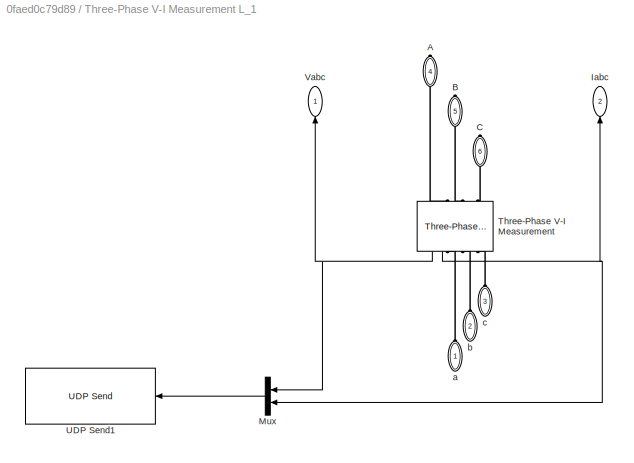
BLOCK [SubSystem] Three-Phase V-I Measurement L_1
  PortSchema = {"entries":[{"content":{"sides":[{"content":{"connectorIds":["Out1","Out2","LConn1","LConn2","LConn3"]},"type":"ConnectorPlacement.EquallySpacedRectSide","uuid":"a739001a-7747-49c0-9baa-61330c5a4cda"},{"content":{"connectorIds":["RConn1","RConn2","RConn3"],"side":"RIGHT"},"type":"ConnectorPlacement.EquallySpacedRectSide","uuid":"653228b2-dfb1-4c37-b4a9-e8730943e8f4"},{"content":{"side":"TOP"},"typ...<+277ch>  <repeated x4 — deduplicated; at blocks: Three-Phase V-I Measurement L_1, Three-Phase V-I Measurement L_2, Three-Phase V-I Measurement L_3, Three-Phase V-I Measurement L_4>
BLOCK [PMIOPort] Three-Phase V-I Measurement L_1/A
  NameLocation = left
  Port = 4
  Side = Right
BLOCK [PMIOPort] Three-Phase V-I Measurement L_1/B
  NameLocation = left
  Port = 5
  Side = Right
BLOCK [PMIOPort] Three-Phase V-I Measurement L_1/C
  NameLocation = left
  Port = 6
  Side = Right
BLOCK [Outport] Three-Phase V-I Measurement L_1/Iabc
  NameLocation = right
  Port = 2
BLOCK [Mux] Three-Phase V-I Measurement L_1/Mux
  DisplayOption = bar
  Inputs = 2
BLOCK [Reference] Three-Phase V-I Measurement L_1/Three-Phase V-I Measurement  REF=spsThreePhaseVIMeasurementLib/Three-Phase
V-I Measurement
  NameLocation = left
  SourceBlock = spsThreePhaseVIMeasurementLib/Three-Phase\nV-I Measurement
  SourceType = Three-Phase VI Measurement
BLOCK [Reference] Three-Phase V-I Measurement L_1/UDP Send1  REF=instrumentlib/UDP Send
  SourceBlock = instrumentlib/UDP Send
  SourceType = instrument.system.UDPSend
BLOCK [Outport] Three-Phase V-I Measurement L_1/Vabc
  NameLocation = right
BLOCK [PMIOPort] Three-Phase V-I Measurement L_1/a
  NameLocation = right
  Side = Left
BLOCK [PMIOPort] Three-Phase V-I Measurement L_1/b
  NameLocation = right
  Port = 2
  Side = Left
BLOCK [PMIOPort] Three-Phase V-I Measurement L_1/c
  NameLocation = right
  Port = 3
  Side = Left
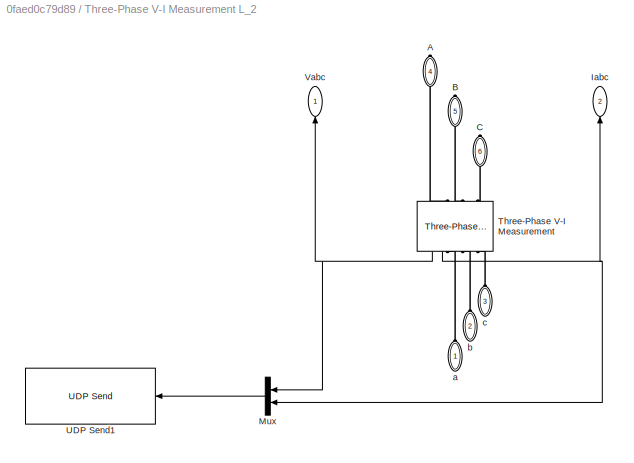
BLOCK [SubSystem] Three-Phase V-I Measurement L_2
  NameLocation = right
BLOCK [PMIOPort] Three-Phase V-I Measurement L_2/A
  NameLocation = left
  Port = 4
  Side = Right
BLOCK [PMIOPort] Three-Phase V-I Measurement L_2/B
  NameLocation = left
  Port = 5
  Side = Right
BLOCK [PMIOPort] Three-Phase V-I Measurement L_2/C
  NameLocation = left
  Port = 6
  Side = Right
BLOCK [Outport] Three-Phase V-I Measurement L_2/Iabc
  NameLocation = right
  Port = 2
BLOCK [Mux] Three-Phase V-I Measurement L_2/Mux
  DisplayOption = bar
  Inputs = 2
BLOCK [Reference] Three-Phase V-I Measurement L_2/Three-Phase V-I Measurement  REF=spsThreePhaseVIMeasurementLib/Three-Phase
V-I Measurement
  NameLocation = left
  SourceBlock = spsThreePhaseVIMeasurementLib/Three-Phase\nV-I Measurement
  SourceType = Three-Phase VI Measurement
BLOCK [Reference] Three-Phase V-I Measurement L_2/UDP Send1  REF=instrumentlib/UDP Send
  SourceBlock = instrumentlib/UDP Send
  SourceType = instrument.system.UDPSend
BLOCK [Outport] Three-Phase V-I Measurement L_2/Vabc
  NameLocation = right
BLOCK [PMIOPort] Three-Phase V-I Measurement L_2/a
  NameLocation = right
  Side = Left
BLOCK [PMIOPort] Three-Phase V-I Measurement L_2/b
  NameLocation = right
  Port = 2
  Side = Left
BLOCK [PMIOPort] Three-Phase V-I Measurement L_2/c
  NameLocation = right
  Port = 3
  Side = Left
BLOCK [SubSystem] Three-Phase V-I Measurement L_3 
BLOCK [PMIOPort] Three-Phase V-I Measurement L_3 /A
  NameLocation = left
  Port = 4
  Side = Right
BLOCK [PMIOPort] Three-Phase V-I Measurement L_3 /B
  NameLocation = left
  Port = 5
  Side = Right
BLOCK [PMIOPort] Three-Phase V-I Measurement L_3 /C
  NameLocation = left
  Port = 6
  Side = Right
BLOCK [Outport] Three-Phase V-I Measurement L_3 /Iabc
  NameLocation = right
  Port = 2
BLOCK [Mux] Three-Phase V-I Measurement L_3 /Mux
  DisplayOption = bar
  Inputs = 2
BLOCK [Reference] Three-Phase V-I Measurement L_3 /Three-Phase V-I Measurement  REF=spsThreePhaseVIMeasurementLib/Three-Phase
V-I Measurement
  NameLocation = left
  SourceBlock = spsThreePhaseVIMeasurementLib/Three-Phase\nV-I Measurement
  SourceType = Three-Phase VI Measurement
BLOCK [Reference] Three-Phase V-I Measurement L_3 /UDP Send1  REF=instrumentlib/UDP Send
  SourceBlock = instrumentlib/UDP Send
  SourceType = instrument.system.UDPSend
BLOCK [Outport] Three-Phase V-I Measurement L_3 /Vabc
  NameLocation = right
BLOCK [PMIOPort] Three-Phase V-I Measurement L_3 /a
  NameLocation = right
  Side = Left
BLOCK [PMIOPort] Three-Phase V-I Measurement L_3 /b
  NameLocation = right
  Port = 2
  Side = Left
BLOCK [PMIOPort] Three-Phase V-I Measurement L_3 /c
  NameLocation = right
  Port = 3
  Side = Left
BLOCK [SubSystem] Three-Phase V-I Measurement L_4
  NameLocation = top
BLOCK [PMIOPort] Three-Phase V-I Measurement L_4/A
  NameLocation = left
  Port = 4
  Side = Right
BLOCK [PMIOPort] Three-Phase V-I Measurement L_4/B
  NameLocation = left
  Port = 5
  Side = Right
BLOCK [PMIOPort] Three-Phase V-I Measurement L_4/C
  NameLocation = left
  Port = 6
  Side = Right
BLOCK [Outport] Three-Phase V-I Measurement L_4/Iabc
  NameLocation = right
  Port = 2
BLOCK [Mux] Three-Phase V-I Measurement L_4/Mux
  DisplayOption = bar
  Inputs = 2
BLOCK [Reference] Three-Phase V-I Measurement L_4/Three-Phase V-I Measurement  REF=spsThreePhaseVIMeasurementLib/Three-Phase
V-I Measurement
  NameLocation = left
  SourceBlock = spsThreePhaseVIMeasurementLib/Three-Phase\nV-I Measurement
  SourceType = Three-Phase VI Measurement
BLOCK [Reference] Three-Phase V-I Measurement L_4/UDP Send1  REF=instrumentlib/UDP Send
  SourceBlock = instrumentlib/UDP Send
  SourceType = instrument.system.UDPSend
BLOCK [Outport] Three-Phase V-I Measurement L_4/Vabc
  NameLocation = right
BLOCK [PMIOPort] Three-Phase V-I Measurement L_4/a
  NameLocation = right
  Side = Left
BLOCK [PMIOPort] Three-Phase V-I Measurement L_4/b
  NameLocation = right
  Port = 2
  Side = Left
BLOCK [PMIOPort] Three-Phase V-I Measurement L_4/c
  NameLocation = right
  Port = 3
  Side = Left
BLOCK [Reference] Three-Phase V-I Measurement OutG2  REF=spsThreePhaseVIMeasurementLib/Three-Phase
V-I Measurement
  LibrarySourceBlock = sps_lib/Sensors and Measurements/Three-Phase\nV-I Measurement
  NameLocation = right
  SourceBlock = spsThreePhaseVIMeasurementLib/Three-Phase\nV-I Measurement
  SourceType = Three-Phase VI Measurement
BLOCK [Reference] Three-Phase V-I Measurement OutG3  REF=spsThreePhaseVIMeasurementLib/Three-Phase
V-I Measurement
  LibrarySourceBlock = sps_lib/Sensors and Measurements/Three-Phase\nV-I Measurement
  NameLocation = right
  SourceBlock = spsThreePhaseVIMeasurementLib/Three-Phase\nV-I Measurement
  SourceType = Three-Phase VI Measurement
BLOCK [Reference] Three-Phase V-I Measurement OutG6  REF=spsThreePhaseVIMeasurementLib/Three-Phase
V-I Measurement
  LibrarySourceBlock = sps_lib/Sensors and Measurements/Three-Phase\nV-I Measurement
  NameLocation = left
  SourceBlock = spsThreePhaseVIMeasurementLib/Three-Phase\nV-I Measurement
  SourceType = Three-Phase VI Measurement
BLOCK [Reference] Three-Phase V-I Measurement1  REF=spsThreePhaseVIMeasurementLib/Three-Phase
V-I Measurement
  LibrarySourceBlock = sps_lib/Sensors and Measurements/Three-Phase\nV-I Measurement
  NameLocation = right
  SourceBlock = spsThreePhaseVIMeasurementLib/Three-Phase\nV-I Measurement
  SourceType = Three-Phase VI Measurement
BLOCK [Reference] Three-Phase V-I Measurement2  REF=spsThreePhaseVIMeasurementLib/Three-Phase
V-I Measurement
  LibrarySourceBlock = sps_lib/Sensors and Measurements/Three-Phase\nV-I Measurement
  NameLocation = right
  SourceBlock = spsThreePhaseVIMeasurementLib/Three-Phase\nV-I Measurement
  SourceType = Three-Phase VI Measurement
BLOCK [Reference] Three-Phase V-I Measurement3  REF=spsThreePhaseVIMeasurementLib/Three-Phase
V-I Measurement
  LibrarySourceBlock = sps_lib/Sensors and Measurements/Three-Phase\nV-I Measurement
  NameLocation = right
  SourceBlock = spsThreePhaseVIMeasurementLib/Three-Phase\nV-I Measurement
  SourceType = Three-Phase VI Measurement
BLOCK [Constant] c_S1
  NameLocation = top
BLOCK [Constant] c_S2
BLOCK [Constant] c_S3
BLOCK [Constant] c_S6
  NameLocation = left
BLOCK [Constant] c_S8
  NameLocation = top
BLOCK [Reference] powergui  REF=spspowerguiLib/powergui
  LibrarySourceBlock = sps_lib/powergui
  Priority = 1
  SourceBlock = spspowerguiLib/powergui
  SourceType = PSB option menu block
BLOCK [SubSystem] startFcn
  ErrorFcn = Stateflow.Translate.translate
  PermitHierarchicalResolution = ExplicitOnly
  SFBlockType = MATLAB Function
  TreatAsAtomicUnit = on
BLOCK [Demux] startFcn/ Demux 
  Outputs = 1
BLOCK [S-Function] startFcn/ SFunction 
  EnableBusSupport = on
  FunctionName = sf_sfun
  PortCounts = [1 1]
  SFcnIsStateOwnerBlock = off
  SFunctionDeploymentMode = off
  Tag = Stateflow S-Function 3
BLOCK [Terminator] startFcn/ Terminator 
BLOCK [Inport] startFcn/u
LINE Breaker St 10:1 -> Goto2:1
LINE Breaker St 11:1 -> Goto1:1
LINE Breaker St 12:1 -> Goto13:1
LINE Breaker St 13:1 -> Goto14:1
LINE Breaker St 14:1 -> Goto15:1
LINE Breaker St 19:1 -> Goto12:1
LINE Breaker St 20:1 -> Goto11:1
LINE Breaker St 4:1 -> Goto5:1
LINE Breaker St 5:1 -> Goto6:1
LINE Breaker St 7:1 -> Goto4:1
LINE Breaker St 8:1 -> Goto3:1
LINE Breaker St 9:1 -> Goto:1
LINE Digital Clock:1 -> startFcn:1
LINE From11:1 -> Three-Phase Breaker20:1
LINE From12:1 -> Three-Phase Breaker19:1
LINE From13:1 -> Three-Phase Breaker12:1
LINE From14:1 -> Three-Phase Breaker13:1
LINE From15:1 -> Three-Phase Breaker14:1
LINE From1:1 -> Three-Phase Breaker11:1
LINE From2:1 -> Three-Phase Breaker10:1
LINE From3:1 -> Three-Phase Breaker8:1
LINE From4:1 -> Three-Phase Breaker7:1
LINE From5:1 -> Three-Phase Breaker4:1
LINE From6:1 -> Three-Phase Breaker5:1
LINE From:1 -> Three-Phase Breaker9:1
LINE SC_B1_L4:1 -> Three-Phase Fault5:1
LINE SC_B1_L5:1 -> Three-Phase Fault4:1
LINE SC_B2_G1:1 -> Three-Phase Fault3:1
LINE SC_B2_G3:1 -> Three-Phase Fault:1
LINE SC_B2_L4:1 -> Three-Phase Fault1:1
LINE SC_B2_L5:1 -> Three-Phase Fault2:1
LINE SC_B3_L4:1 -> Three-Phase Fault15:1
LINE SC_B6_L10:1 -> Three-Phase Fault11:1
LINE SC_B6_L14:1 -> Three-Phase Fault10:1
LINE SC_B8_L10:1 -> Three-Phase Fault13:1
LINE SC_B8_L14:1 -> Three-Phase Fault12:1
LINE SC_B8_L5:1 -> Three-Phase Fault14:1
LINE SC_L1:1 -> Three-Phase Fault9:1
LINE SC_L2:1 -> Three-Phase Fault8:1
LINE SC_L3:1 -> Three-Phase Fault7:1
LINE SC_L4:1 -> Three-Phase Fault6:1
NET Three-Phase Breaker L_1/UDP Receive:1 -> Three-Phase Breaker L_1/Three-Phase Breaker3:1, Three-Phase Breaker L_1/com:1
LINE Three-Phase Breaker L_1/UDP Receive:2 -> Three-Phase Breaker L_1/Terminator:1
LINE Three-Phase Breaker L_1:1 -> Display 3:1
NET Three-Phase Breaker L_2/UDP Receive:1 -> Three-Phase Breaker L_2/Three-Phase Breaker3:1, Three-Phase Breaker L_2/com:1
LINE Three-Phase Breaker L_2/UDP Receive:2 -> Three-Phase Breaker L_2/Terminator:1
LINE Three-Phase Breaker L_2:1 -> Display 4:1
NET Three-Phase Breaker L_3/UDP Receive:1 -> Three-Phase Breaker L_3/Three-Phase Breaker3:1, Three-Phase Breaker L_3/com:1
LINE Three-Phase Breaker L_3/UDP Receive:2 -> Three-Phase Breaker L_3/Terminator:1
LINE Three-Phase Breaker L_3:1 -> Display 2:1
NET Three-Phase Breaker L_4/UDP Receive:1 -> Three-Phase Breaker L_4/Three-Phase Breaker3:1, Three-Phase Breaker L_4/com:1
LINE Three-Phase Breaker L_4/UDP Receive:2 -> Three-Phase Breaker L_4/Terminator:1
LINE Three-Phase Breaker L_4:1 -> Display 1:1
LINE Three-Phase V-I Measurement L_1/Mux:1 -> Three-Phase V-I Measurement L_1/UDP Send1:1
NET Three-Phase V-I Measurement L_1/Three-Phase V-I Measurement:1 -> Three-Phase V-I Measurement L_1/Mux:1, Three-Phase V-I Measurement L_1/Vabc:1
NET Three-Phase V-I Measurement L_1/Three-Phase V-I Measurement:2 -> Three-Phase V-I Measurement L_1/Iabc:1, Three-Phase V-I Measurement L_1/Mux:2
LINE Three-Phase V-I Measurement L_1:2 -> Scope1:1
LINE Three-Phase V-I Measurement L_2/Mux:1 -> Three-Phase V-I Measurement L_2/UDP Send1:1
NET Three-Phase V-I Measurement L_2/Three-Phase V-I Measurement:1 -> Three-Phase V-I Measurement L_2/Mux:1, Three-Phase V-I Measurement L_2/Vabc:1
NET Three-Phase V-I Measurement L_2/Three-Phase V-I Measurement:2 -> Three-Phase V-I Measurement L_2/Iabc:1, Three-Phase V-I Measurement L_2/Mux:2
LINE Three-Phase V-I Measurement L_2:2 -> Scope2:1
LINE Three-Phase V-I Measurement L_3 /Mux:1 -> Three-Phase V-I Measurement L_3 /UDP Send1:1
NET Three-Phase V-I Measurement L_3 /Three-Phase V-I Measurement:1 -> Three-Phase V-I Measurement L_3 /Mux:1, Three-Phase V-I Measurement L_3 /Vabc:1
NET Three-Phase V-I Measurement L_3 /Three-Phase V-I Measurement:2 -> Three-Phase V-I Measurement L_3 /Iabc:1, Three-Phase V-I Measurement L_3 /Mux:2
LINE Three-Phase V-I Measurement L_3 :2 -> Scope3:1
LINE Three-Phase V-I Measurement L_4/Mux:1 -> Three-Phase V-I Measurement L_4/UDP Send1:1
NET Three-Phase V-I Measurement L_4/Three-Phase V-I Measurement:1 -> Three-Phase V-I Measurement L_4/Mux:1, Three-Phase V-I Measurement L_4/Vabc:1
NET Three-Phase V-I Measurement L_4/Three-Phase V-I Measurement:2 -> Three-Phase V-I Measurement L_4/Iabc:1, Three-Phase V-I Measurement L_4/Mux:2
LINE Three-Phase V-I Measurement L_4:2 -> Scope4:1
LINE c_S1:1 -> Three-Phase Breaker2:1
LINE c_S2:1 -> Three-Phase Breaker1:1
LINE c_S3:1 -> Three-Phase Breaker3:1
LINE c_S6:1 -> Three-Phase Breaker6:1
LINE c_S8:1 -> Three-Phase Breaker:1
PNET net1: Load Flow Bus10:LConn1 -- Three-Phase Breaker14:RConn1 -- Three-Phase Breaker20:RConn1 -- Three-Phase V-I Measurement L10:LConn1
PNET net2: Load Flow Bus11:LConn1 -- Three-Phase Transformer (Two Windings)1:LConn1 -- Three-Phase V-I Measurement1:LConn1
PNET net3: Load Flow Bus12:LConn1 -- Three-Phase Transformer (Two Windings)2:LConn1 -- Three-Phase V-I Measurement2:LConn1
PNET net4: Load Flow Bus13:LConn1 -- Three-Phase Breaker12:RConn1 -- Three-Phase V-I Measurement G8:LConn1
PNET net5: Load Flow Bus14:LConn1 -- Three-Phase Breaker1:LConn1 -- Three-Phase Source2:RConn1
PNET net6: Load Flow Bus15:LConn1 -- Three-Phase Breaker6:LConn1 -- Three-Phase Source6:RConn1
PNET net7: Load Flow Bus16:LConn1 -- Three-Phase Breaker:LConn1 -- Three-Phase Source8:RConn1
PNET net8: Load Flow Bus17:LConn1 -- Three-Phase Breaker2:RConn1 -- Three-Phase V-I Measurement G1:LConn1
PNET net9: Load Flow Bus18:LConn1 -- Three-Phase Breaker3:LConn1 -- Three-Phase Source3:RConn1
PNET net10: Load Flow Bus1:LConn1 -- Three-Phase V-I Measurement B2_G1:LConn1 -- Three-Phase V-I Measurement B2_G3:LConn1 -- Three-Phase V-I Measurement B2_L4:LConn1 -- Three-Phase V-I Measurement B2_L5:LConn1 -- Three-Phase V-I Measurement OutG2:RConn1
PNET net11: Load Flow Bus2:LConn1 -- Three-Phase Series RLC Load5:LConn1 -- Three-Phase V-I Measurement L5:LConn1
PNET net12: Load Flow Bus3:LConn1 -- Three-Phase V-I Measurement G3:RConn1 -- Three-Phase V-I Measurement L3:LConn1 -- Three-Phase V-I Measurement OutG3:LConn1
PNET net13: Load Flow Bus4:LConn1 -- Three-Phase Breaker11:RConn1 -- Three-Phase Breaker5:RConn1 -- Three-Phase Breaker7:RConn1 -- Three-Phase Transformer (Two Windings)1:RConn1 -- Three-Phase Transformer (Two Windings)2:RConn1 -- Three-Phase V-I Measurement L4:LConn1
PNET net14: Load Flow Bus5:LConn1 -- Three-Phase V-I Measurement G6:RConn1 -- Three-Phase V-I Measurement L6:LConn1 -- Three-Phase V-I Measurement OutG6:LConn1
PNET net15: Load Flow Bus6:LConn1 -- Three-Phase Series RLC Load11:LConn1 -- Three-Phase V-I Measurement L11:RConn1
PNET net16: Load Flow Bus7:LConn1 -- Three-Phase Breaker L_2:LConn1 -- Three-Phase V-I Measurement L12:LConn1 -- Three-Phase V-I Measurement L_1:RConn1
PNET net17: Load Flow Bus8:LConn1 -- Three-Phase Breaker L_1:LConn1 -- Three-Phase Breaker L_3:LConn1 -- Three-Phase V-I Measurement B6_L14:LConn1 -- Three-Phase V-I Measurement L13:LConn1
PNET net18: Load Flow Bus9:LConn1 -- Three-Phase Breaker13:RConn1 -- Three-Phase Breaker19:RConn1 -- Three-Phase V-I Measurement L14:LConn1
PNET net19: Load Flow Bus:LConn1 -- Three-Phase Breaker2:LConn1 -- Three-Phase Source1:RConn1
PLINE Three-Phase Breaker L_1/A:RConn1 -- Three-Phase Breaker L_1/Three-Phase Breaker3:LConn1
PLINE Three-Phase Breaker L_1/B:RConn1 -- Three-Phase Breaker L_1/Three-Phase Breaker3:LConn2
PLINE Three-Phase Breaker L_1/C:RConn1 -- Three-Phase Breaker L_1/Three-Phase Breaker3:LConn3
PLINE Three-Phase Breaker L_1/Three-Phase Breaker3:RConn1 -- Three-Phase Breaker L_1/a:RConn1
PLINE Three-Phase Breaker L_1/Three-Phase Breaker3:RConn2 -- Three-Phase Breaker L_1/b:RConn1
PLINE Three-Phase Breaker L_1/Three-Phase Breaker3:RConn3 -- Three-Phase Breaker L_1/c:RConn1
PNET net20: Three-Phase Breaker L_1:LConn2 -- Three-Phase Breaker L_3:LConn2 -- Three-Phase V-I Measurement B6_L14:LConn2 -- Three-Phase V-I Measurement L13:LConn2
PNET net21: Three-Phase Breaker L_1:LConn3 -- Three-Phase Breaker L_3:LConn3 -- Three-Phase V-I Measurement B6_L14:LConn3 -- Three-Phase V-I Measurement L13:LConn3
PLINE Three-Phase Breaker L_1:RConn1 -- Three-Phase Series RLC L_1:RConn1
PLINE Three-Phase Breaker L_1:RConn2 -- Three-Phase Series RLC L_1:RConn2
PLINE Three-Phase Breaker L_1:RConn3 -- Three-Phase Series RLC L_1:RConn3
PLINE Three-Phase Breaker L_2/A:RConn1 -- Three-Phase Breaker L_2/Three-Phase Breaker3:LConn1
PLINE Three-Phase Breaker L_2/B:RConn1 -- Three-Phase Breaker L_2/Three-Phase Breaker3:LConn2
PLINE Three-Phase Breaker L_2/C:RConn1 -- Three-Phase Breaker L_2/Three-Phase Breaker3:LConn3
PLINE Three-Phase Breaker L_2/Three-Phase Breaker3:RConn1 -- Three-Phase Breaker L_2/a:RConn1
PLINE Three-Phase Breaker L_2/Three-Phase Breaker3:RConn2 -- Three-Phase Breaker L_2/b:RConn1
PLINE Three-Phase Breaker L_2/Three-Phase Breaker3:RConn3 -- Three-Phase Breaker L_2/c:RConn1
PNET net22: Three-Phase Breaker L_2:LConn2 -- Three-Phase V-I Measurement L12:LConn2 -- Three-Phase V-I Measurement L_1:RConn2
PNET net23: Three-Phase Breaker L_2:LConn3 -- Three-Phase V-I Measurement L12:LConn3 -- Three-Phase V-I Measurement L_1:RConn3
PLINE Three-Phase Breaker L_2:RConn1 -- Three-Phase Series RLC L_2:RConn1
PLINE Three-Phase Breaker L_2:RConn2 -- Three-Phase Series RLC L_2:RConn2
PLINE Three-Phase Breaker L_2:RConn3 -- Three-Phase Series RLC L_2:RConn3
PLINE Three-Phase Breaker L_3/A:RConn1 -- Three-Phase Breaker L_3/Three-Phase Breaker3:LConn1
PLINE Three-Phase Breaker L_3/B:RConn1 -- Three-Phase Breaker L_3/Three-Phase Breaker3:LConn2
PLINE Three-Phase Breaker L_3/C:RConn1 -- Three-Phase Breaker L_3/Three-Phase Breaker3:LConn3
PLINE Three-Phase Breaker L_3/Three-Phase Breaker3:RConn1 -- Three-Phase Breaker L_3/a:RConn1
PLINE Three-Phase Breaker L_3/Three-Phase Breaker3:RConn2 -- Three-Phase Breaker L_3/b:RConn1
PLINE Three-Phase Breaker L_3/Three-Phase Breaker3:RConn3 -- Three-Phase Breaker L_3/c:RConn1
PLINE Three-Phase Breaker L_3:RConn1 -- Three-Phase Series RLC L_3:LConn1
PLINE Three-Phase Breaker L_3:RConn2 -- Three-Phase Series RLC L_3:LConn2
PLINE Three-Phase Breaker L_3:RConn3 -- Three-Phase Series RLC L_3:LConn3
PLINE Three-Phase Breaker L_4/A:RConn1 -- Three-Phase Breaker L_4/Three-Phase Breaker3:LConn1
PLINE Three-Phase Breaker L_4/B:RConn1 -- Three-Phase Breaker L_4/Three-Phase Breaker3:LConn2
PLINE Three-Phase Breaker L_4/C:RConn1 -- Three-Phase Breaker L_4/Three-Phase Breaker3:LConn3
PLINE Three-Phase Breaker L_4/Three-Phase Breaker3:RConn1 -- Three-Phase Breaker L_4/a:RConn1
PLINE Three-Phase Breaker L_4/Three-Phase Breaker3:RConn2 -- Three-Phase Breaker L_4/b:RConn1
PLINE Three-Phase Breaker L_4/Three-Phase Breaker3:RConn3 -- Three-Phase Breaker L_4/c:RConn1
PNET net24: Three-Phase Breaker L_4:LConn1 -- Three-Phase V-I Measurement B6_L10:LConn1 -- Three-Phase V-I Measurement L11:LConn1
PNET net25: Three-Phase Breaker L_4:LConn2 -- Three-Phase V-I Measurement B6_L10:LConn2 -- Three-Phase V-I Measurement L11:LConn2
PNET net26: Three-Phase Breaker L_4:LConn3 -- Three-Phase V-I Measurement B6_L10:LConn3 -- Three-Phase V-I Measurement L11:LConn3
PLINE Three-Phase Breaker L_4:RConn1 -- Three-Phase Series RLC L_4:RConn1
PLINE Three-Phase Breaker L_4:RConn2 -- Three-Phase Series RLC L_4:RConn2
PLINE Three-Phase Breaker L_4:RConn3 -- Three-Phase Series RLC L_4:RConn3
PLINE Three-Phase Breaker10:LConn1 -- Three-Phase Series RLC B2_G1:RConn1
PLINE Three-Phase Breaker10:LConn2 -- Three-Phase Series RLC B2_G1:RConn2
PLINE Three-Phase Breaker10:LConn3 -- Three-Phase Series RLC B2_G1:RConn3
PNET net27: Three-Phase Breaker10:RConn1 -- Three-Phase V-I Measurement B1_L5:LConn1 -- Three-Phase V-I Measurement G1:RConn1
PNET net28: Three-Phase Breaker10:RConn2 -- Three-Phase V-I Measurement B1_L5:LConn2 -- Three-Phase V-I Measurement G1:RConn2
PNET net29: Three-Phase Breaker10:RConn3 -- Three-Phase V-I Measurement B1_L5:LConn3 -- Three-Phase V-I Measurement G1:RConn3
PLINE Three-Phase Breaker11:LConn1 -- Three-Phase Series RLC B1_L4:RConn1
PLINE Three-Phase Breaker11:LConn2 -- Three-Phase Series RLC B1_L4:RConn2
PLINE Three-Phase Breaker11:LConn3 -- Three-Phase Series RLC B1_L4:RConn3
PNET net30: Three-Phase Breaker11:RConn2 -- Three-Phase Breaker5:RConn2 -- Three-Phase Breaker7:RConn2 -- Three-Phase Transformer (Two Windings)1:RConn2 -- Three-Phase Transformer (Two Windings)2:RConn2 -- Three-Phase V-I Measurement L4:LConn2
PNET net31: Three-Phase Breaker11:RConn3 -- Three-Phase Breaker5:RConn3 -- Three-Phase Breaker7:RConn3 -- Three-Phase Transformer (Two Windings)1:RConn3 -- Three-Phase Transformer (Two Windings)2:RConn3 -- Three-Phase V-I Measurement L4:LConn3
PNET net32: Three-Phase Breaker12:LConn1 -- Three-Phase Fault14:LConn1 -- Three-Phase Series RLC B8_L5:RConn1
PNET net33: Three-Phase Breaker12:LConn2 -- Three-Phase Fault14:LConn2 -- Three-Phase Series RLC B8_L5:RConn2
PNET net34: Three-Phase Breaker12:LConn3 -- Three-Phase Fault14:LConn3 -- Three-Phase Series RLC B8_L5:RConn3
PLINE Three-Phase Breaker12:RConn2 -- Three-Phase V-I Measurement G8:LConn2
PLINE Three-Phase Breaker12:RConn3 -- Three-Phase V-I Measurement G8:LConn3
PLINE Three-Phase Breaker13:LConn1 -- Three-Phase Series RLC B8_L14:RConn1
PLINE Three-Phase Breaker13:LConn2 -- Three-Phase Series RLC B8_L14:RConn2
PLINE Three-Phase Breaker13:LConn3 -- Three-Phase Series RLC B8_L14:RConn3
PNET net35: Three-Phase Breaker13:RConn2 -- Three-Phase Breaker19:RConn2 -- Three-Phase V-I Measurement L14:LConn2
PNET net36: Three-Phase Breaker13:RConn3 -- Three-Phase Breaker19:RConn3 -- Three-Phase V-I Measurement L14:LConn3
PLINE Three-Phase Breaker14:LConn1 -- Three-Phase Series RLC B8_L10:RConn1
PLINE Three-Phase Breaker14:LConn2 -- Three-Phase Series RLC B8_L10:RConn2
PLINE Three-Phase Breaker14:LConn3 -- Three-Phase Series RLC B8_L10:RConn3
PNET net37: Three-Phase Breaker14:RConn2 -- Three-Phase Breaker20:RConn2 -- Three-Phase V-I Measurement L10:LConn2
PNET net38: Three-Phase Breaker14:RConn3 -- Three-Phase Breaker20:RConn3 -- Three-Phase V-I Measurement L10:LConn3
PLINE Three-Phase Breaker19:LConn1 -- Three-Phase Series RLC B6_L14:RConn1
PLINE Three-Phase Breaker19:LConn2 -- Three-Phase Series RLC B6_L14:RConn2
PLINE Three-Phase Breaker19:LConn3 -- Three-Phase Series RLC B6_L14:RConn3
PLINE Three-Phase Breaker1:LConn2 -- Three-Phase Source2:RConn2
PLINE Three-Phase Breaker1:LConn3 -- Three-Phase Source2:RConn3
PLINE Three-Phase Breaker1:RConn1 -- Three-Phase V-I Measurement G2:LConn1
PLINE Three-Phase Breaker1:RConn2 -- Three-Phase V-I Measurement G2:LConn2
PLINE Three-Phase Breaker1:RConn3 -- Three-Phase V-I Measurement G2:LConn3
PLINE Three-Phase Breaker20:LConn1 -- Three-Phase Series RLC B6_L10:RConn1
PLINE Three-Phase Breaker20:LConn2 -- Three-Phase Series RLC B6_L10:RConn2
PLINE Three-Phase Breaker20:LConn3 -- Three-Phase Series RLC B6_L10:RConn3
PLINE Three-Phase Breaker2:LConn2 -- Three-Phase Source1:RConn2
PLINE Three-Phase Breaker2:LConn3 -- Three-Phase Source1:RConn3
PLINE Three-Phase Breaker2:RConn2 -- Three-Phase V-I Measurement G1:LConn2
PLINE Three-Phase Breaker2:RConn3 -- Three-Phase V-I Measurement G1:LConn3
PLINE Three-Phase Breaker3:LConn2 -- Three-Phase Source3:RConn2
PLINE Three-Phase Breaker3:LConn3 -- Three-Phase Source3:RConn3
PLINE Three-Phase Breaker3:RConn1 -- Three-Phase V-I Measurement G3:LConn1
PLINE Three-Phase Breaker3:RConn2 -- Three-Phase V-I Measurement G3:LConn2
PLINE Three-Phase Breaker3:RConn3 -- Three-Phase V-I Measurement G3:LConn3
PLINE Three-Phase Breaker4:LConn1 -- Three-Phase Series RLC B2_G3:RConn1
PLINE Three-Phase Breaker4:LConn2 -- Three-Phase Series RLC B2_G3:RConn2
PLINE Three-Phase Breaker4:LConn3 -- Three-Phase Series RLC B2_G3:RConn3
PNET net39: Three-Phase Breaker4:RConn1 -- Three-Phase V-I Measurement B3_L4 :LConn1 -- Three-Phase V-I Measurement OutG3:RConn1
PNET net40: Three-Phase Breaker4:RConn2 -- Three-Phase V-I Measurement B3_L4 :LConn2 -- Three-Phase V-I Measurement OutG3:RConn2
PNET net41: Three-Phase Breaker4:RConn3 -- Three-Phase V-I Measurement B3_L4 :LConn3 -- Three-Phase V-I Measurement OutG3:RConn3
PLINE Three-Phase Breaker5:LConn1 -- Three-Phase Series RLC B3_L4:RConn1
PLINE Three-Phase Breaker5:LConn2 -- Three-Phase Series RLC B3_L4:RConn2
PLINE Three-Phase Breaker5:LConn3 -- Three-Phase Series RLC B3_L4:RConn3
PLINE Three-Phase Breaker6:LConn2 -- Three-Phase Source6:RConn2
PLINE Three-Phase Breaker6:LConn3 -- Three-Phase Source6:RConn3
PLINE Three-Phase Breaker6:RConn1 -- Three-Phase V-I Measurement G6:LConn1
PLINE Three-Phase Breaker6:RConn2 -- Three-Phase V-I Measurement G6:LConn2
PLINE Three-Phase Breaker6:RConn3 -- Three-Phase V-I Measurement G6:LConn3
PLINE Three-Phase Breaker7:LConn1 -- Three-Phase Series RLC B2_L4:RConn1
PLINE Three-Phase Breaker7:LConn2 -- Three-Phase Series RLC B2_L4:RConn2
PLINE Three-Phase Breaker7:LConn3 -- Three-Phase Series RLC B2_L4:RConn3
PLINE Three-Phase Breaker8:LConn1 -- Three-Phase Series RLC B2_L5:RConn1
PLINE Three-Phase Breaker8:LConn2 -- Three-Phase Series RLC B2_L5:RConn2
PLINE Three-Phase Breaker8:LConn3 -- Three-Phase Series RLC B2_L5:RConn3
PNET net42: Three-Phase Breaker8:RConn1 -- Three-Phase Breaker9:RConn1 -- Three-Phase Transformer (Two Windings):RConn1 -- Three-Phase V-I Measurement B1_L4:LConn1 -- Three-Phase V-I Measurement L5:RConn1
PNET net43: Three-Phase Breaker8:RConn2 -- Three-Phase Breaker9:RConn2 -- Three-Phase Transformer (Two Windings):RConn2 -- Three-Phase V-I Measurement B1_L4:LConn2 -- Three-Phase V-I Measurement L5:RConn2
PNET net44: Three-Phase Breaker8:RConn3 -- Three-Phase Breaker9:RConn3 -- Three-Phase Transformer (Two Windings):RConn3 -- Three-Phase V-I Measurement B1_L4:LConn3 -- Three-Phase V-I Measurement L5:RConn3
PLINE Three-Phase Breaker9:LConn1 -- Three-Phase Series RLC B1_L5:RConn1
PLINE Three-Phase Breaker9:LConn2 -- Three-Phase Series RLC B1_L5:RConn2
PLINE Three-Phase Breaker9:LConn3 -- Three-Phase Series RLC B1_L5:RConn3
PLINE Three-Phase Breaker:LConn2 -- Three-Phase Source8:RConn2
PLINE Three-Phase Breaker:LConn3 -- Three-Phase Source8:RConn3
PLINE Three-Phase Breaker:RConn1 -- Three-Phase V-I Measurement G8:RConn1
PLINE Three-Phase Breaker:RConn2 -- Three-Phase V-I Measurement G8:RConn2
PLINE Three-Phase Breaker:RConn3 -- Three-Phase V-I Measurement G8:RConn3
PNET net45: Three-Phase Fault10:LConn1 -- Three-Phase Series RLC B6_L14:LConn1 -- Three-Phase V-I Measurement B6_L14:RConn1
PNET net46: Three-Phase Fault10:LConn2 -- Three-Phase Series RLC B6_L14:LConn2 -- Three-Phase V-I Measurement B6_L14:RConn2
PNET net47: Three-Phase Fault10:LConn3 -- Three-Phase Series RLC B6_L14:LConn3 -- Three-Phase V-I Measurement B6_L14:RConn3
PNET net48: Three-Phase Fault11:LConn1 -- Three-Phase Series RLC B6_L10:LConn1 -- Three-Phase V-I Measurement B6_L10:RConn1
PNET net49: Three-Phase Fault11:LConn2 -- Three-Phase Series RLC B6_L10:LConn2 -- Three-Phase V-I Measurement B6_L10:RConn2
PNET net50: Three-Phase Fault11:LConn3 -- Three-Phase Series RLC B6_L10:LConn3 -- Three-Phase V-I Measurement B6_L10:RConn3
PNET net51: Three-Phase Fault12:LConn1 -- Three-Phase Series RLC B8_L14:LConn1 -- Three-Phase V-I Measurement B8_L14 :RConn1
PNET net52: Three-Phase Fault12:LConn2 -- Three-Phase Series RLC B8_L14:LConn2 -- Three-Phase V-I Measurement B8_L14 :RConn2
PNET net53: Three-Phase Fault12:LConn3 -- Three-Phase Series RLC B8_L14:LConn3 -- Three-Phase V-I Measurement B8_L14 :RConn3
PNET net54: Three-Phase Fault13:LConn1 -- Three-Phase Series RLC B8_L10:LConn1 -- Three-Phase V-I Measurement B8_L10:RConn1
PNET net55: Three-Phase Fault13:LConn2 -- Three-Phase Series RLC B8_L10:LConn2 -- Three-Phase V-I Measurement B8_L10:RConn2
PNET net56: Three-Phase Fault13:LConn3 -- Three-Phase Series RLC B8_L10:LConn3 -- Three-Phase V-I Measurement B8_L10:RConn3
PNET net57: Three-Phase Fault15:LConn1 -- Three-Phase Series RLC B3_L4:LConn1 -- Three-Phase V-I Measurement B3_L4 :RConn1
PNET net58: Three-Phase Fault15:LConn2 -- Three-Phase Series RLC B3_L4:LConn2 -- Three-Phase V-I Measurement B3_L4 :RConn2
PNET net59: Three-Phase Fault15:LConn3 -- Three-Phase Series RLC B3_L4:LConn3 -- Three-Phase V-I Measurement B3_L4 :RConn3
PNET net60: Three-Phase Fault1:LConn1 -- Three-Phase Series RLC B2_L4:LConn1 -- Three-Phase V-I Measurement B2_L4:RConn1
PNET net61: Three-Phase Fault1:LConn2 -- Three-Phase Series RLC B2_L4:LConn2 -- Three-Phase V-I Measurement B2_L4:RConn2
PNET net62: Three-Phase Fault1:LConn3 -- Three-Phase Series RLC B2_L4:LConn3 -- Three-Phase V-I Measurement B2_L4:RConn3
PNET net63: Three-Phase Fault2:LConn1 -- Three-Phase Series RLC B2_L5:LConn1 -- Three-Phase V-I Measurement B2_L5:RConn1
PNET net64: Three-Phase Fault2:LConn2 -- Three-Phase Series RLC B2_L5:LConn2 -- Three-Phase V-I Measurement B2_L5:RConn2
PNET net65: Three-Phase Fault2:LConn3 -- Three-Phase Series RLC B2_L5:LConn3 -- Three-Phase V-I Measurement B2_L5:RConn3
PNET net66: Three-Phase Fault3:LConn1 -- Three-Phase Series RLC B2_G1:LConn1 -- Three-Phase V-I Measurement B2_G1:RConn1
PNET net67: Three-Phase Fault3:LConn2 -- Three-Phase Series RLC B2_G1:LConn2 -- Three-Phase V-I Measurement B2_G1:RConn2
PNET net68: Three-Phase Fault3:LConn3 -- Three-Phase Series RLC B2_G1:LConn3 -- Three-Phase V-I Measurement B2_G1:RConn3
PNET net69: Three-Phase Fault4:LConn1 -- Three-Phase Series RLC B1_L5:LConn1 -- Three-Phase V-I Measurement B1_L5:RConn1
PNET net70: Three-Phase Fault4:LConn2 -- Three-Phase Series RLC B1_L5:LConn2 -- Three-Phase V-I Measurement B1_L5:RConn2
PNET net71: Three-Phase Fault4:LConn3 -- Three-Phase Series RLC B1_L5:LConn3 -- Three-Phase V-I Measurement B1_L5:RConn3
PNET net72: Three-Phase Fault5:LConn1 -- Three-Phase Series RLC B1_L4:LConn1 -- Three-Phase V-I Measurement B1_L4:RConn1
PNET net73: Three-Phase Fault5:LConn2 -- Three-Phase Series RLC B1_L4:LConn2 -- Three-Phase V-I Measurement B1_L4:RConn2
PNET net74: Three-Phase Fault5:LConn3 -- Three-Phase Series RLC B1_L4:LConn3 -- Three-Phase V-I Measurement B1_L4:RConn3
PNET net75: Three-Phase Fault6:LConn1 -- Three-Phase Series RLC L_4:LConn1 -- Three-Phase V-I Measurement L_4:LConn1
PNET net76: Three-Phase Fault6:LConn2 -- Three-Phase Series RLC L_4:LConn2 -- Three-Phase V-I Measurement L_4:LConn2
PNET net77: Three-Phase Fault6:LConn3 -- Three-Phase Series RLC L_4:LConn3 -- Three-Phase V-I Measurement L_4:LConn3
PNET net78: Three-Phase Fault7:LConn1 -- Three-Phase Series RLC L_3:RConn1 -- Three-Phase V-I Measurement L_3 :LConn1
PNET net79: Three-Phase Fault7:LConn2 -- Three-Phase Series RLC L_3:RConn2 -- Three-Phase V-I Measurement L_3 :LConn2
PNET net80: Three-Phase Fault7:LConn3 -- Three-Phase Series RLC L_3:RConn3 -- Three-Phase V-I Measurement L_3 :LConn3
PNET net81: Three-Phase Fault8:LConn1 -- Three-Phase Series RLC L_2:LConn1 -- Three-Phase V-I Measurement L_2:LConn1
PNET net82: Three-Phase Fault8:LConn2 -- Three-Phase Series RLC L_2:LConn2 -- Three-Phase V-I Measurement L_2:LConn2
PNET net83: Three-Phase Fault8:LConn3 -- Three-Phase Series RLC L_2:LConn3 -- Three-Phase V-I Measurement L_2:LConn3
PNET net84: Three-Phase Fault9:LConn1 -- Three-Phase Series RLC L_1:LConn1 -- Three-Phase V-I Measurement L_1:LConn1
PNET net85: Three-Phase Fault9:LConn2 -- Three-Phase Series RLC L_1:LConn2 -- Three-Phase V-I Measurement L_1:LConn2
PNET net86: Three-Phase Fault9:LConn3 -- Three-Phase Series RLC L_1:LConn3 -- Three-Phase V-I Measurement L_1:LConn3
PNET net87: Three-Phase Fault:LConn1 -- Three-Phase Series RLC B2_G3:LConn1 -- Three-Phase V-I Measurement B2_G3:RConn1
PNET net88: Three-Phase Fault:LConn2 -- Three-Phase Series RLC B2_G3:LConn2 -- Three-Phase V-I Measurement B2_G3:RConn2
PNET net89: Three-Phase Fault:LConn3 -- Three-Phase Series RLC B2_G3:LConn3 -- Three-Phase V-I Measurement B2_G3:RConn3
PLINE Three-Phase Series RLC B8_L5:LConn1 -- Three-Phase V-I Measurement B8_L5:LConn1
PLINE Three-Phase Series RLC B8_L5:LConn2 -- Three-Phase V-I Measurement B8_L5:LConn2
PLINE Three-Phase Series RLC B8_L5:LConn3 -- Three-Phase V-I Measurement B8_L5:LConn3
PLINE Three-Phase Series RLC Load10:LConn1 -- Three-Phase V-I Measurement L10:RConn1
PLINE Three-Phase Series RLC Load10:LConn2 -- Three-Phase V-I Measurement L10:RConn2
PLINE Three-Phase Series RLC Load10:LConn3 -- Three-Phase V-I Measurement L10:RConn3
PLINE Three-Phase Series RLC Load11:LConn2 -- Three-Phase V-I Measurement L11:RConn2
PLINE Three-Phase Series RLC Load11:LConn3 -- Three-Phase V-I Measurement L11:RConn3
PLINE Three-Phase Series RLC Load12:LConn1 -- Three-Phase V-I Measurement L12:RConn1
PLINE Three-Phase Series RLC Load12:LConn2 -- Three-Phase V-I Measurement L12:RConn2
PLINE Three-Phase Series RLC Load12:LConn3 -- Three-Phase V-I Measurement L12:RConn3
PLINE Three-Phase Series RLC Load13:LConn1 -- Three-Phase V-I Measurement L13:RConn1
PLINE Three-Phase Series RLC Load13:LConn2 -- Three-Phase V-I Measurement L13:RConn2
PLINE Three-Phase Series RLC Load13:LConn3 -- Three-Phase V-I Measurement L13:RConn3
PLINE Three-Phase Series RLC Load14:LConn1 -- Three-Phase V-I Measurement L14:RConn1
PLINE Three-Phase Series RLC Load14:LConn2 -- Three-Phase V-I Measurement L14:RConn2
PLINE Three-Phase Series RLC Load14:LConn3 -- Three-Phase V-I Measurement L14:RConn3
PLINE Three-Phase Series RLC Load2:LConn1 -- Three-Phase V-I Measurement L2:RConn1
PLINE Three-Phase Series RLC Load2:LConn2 -- Three-Phase V-I Measurement L2:RConn2
PLINE Three-Phase Series RLC Load2:LConn3 -- Three-Phase V-I Measurement L2:RConn3
PLINE Three-Phase Series RLC Load3:LConn1 -- Three-Phase V-I Measurement L3:RConn1
PLINE Three-Phase Series RLC Load3:LConn2 -- Three-Phase V-I Measurement L3:RConn2
PLINE Three-Phase Series RLC Load3:LConn3 -- Three-Phase V-I Measurement L3:RConn3
PLINE Three-Phase Series RLC Load4:LConn1 -- Three-Phase V-I Measurement L4:RConn1
PLINE Three-Phase Series RLC Load4:LConn2 -- Three-Phase V-I Measurement L4:RConn2
PLINE Three-Phase Series RLC Load4:LConn3 -- Three-Phase V-I Measurement L4:RConn3
PLINE Three-Phase Series RLC Load5:LConn2 -- Three-Phase V-I Measurement L5:LConn2
PLINE Three-Phase Series RLC Load5:LConn3 -- Three-Phase V-I Measurement L5:LConn3
PLINE Three-Phase Series RLC Load6:LConn1 -- Three-Phase V-I Measurement L6:RConn1
PLINE Three-Phase Series RLC Load6:LConn2 -- Three-Phase V-I Measurement L6:RConn2
PLINE Three-Phase Series RLC Load6:LConn3 -- Three-Phase V-I Measurement L6:RConn3
PLINE Three-Phase Series RLC Load9:LConn1 -- Three-Phase V-I Measurement L9:RConn1
PLINE Three-Phase Series RLC Load9:LConn2 -- Three-Phase V-I Measurement L9:RConn2
PLINE Three-Phase Series RLC Load9:LConn3 -- Three-Phase V-I Measurement L9:RConn3
PLINE Three-Phase Transformer (Two Windings)1:LConn2 -- Three-Phase V-I Measurement1:LConn2
PLINE Three-Phase Transformer (Two Windings)1:LConn3 -- Three-Phase V-I Measurement1:LConn3
PLINE Three-Phase Transformer (Two Windings)2:LConn2 -- Three-Phase V-I Measurement2:LConn2
PLINE Three-Phase Transformer (Two Windings)2:LConn3 -- Three-Phase V-I Measurement2:LConn3
PLINE Three-Phase Transformer (Two Windings)3:LConn1 -- Three-Phase V-I Measurement3:LConn1
PLINE Three-Phase Transformer (Two Windings)3:LConn2 -- Three-Phase V-I Measurement3:LConn2
PLINE Three-Phase Transformer (Two Windings)3:LConn3 -- Three-Phase V-I Measurement3:LConn3
PNET net90: Three-Phase Transformer (Two Windings)3:RConn1 -- Three-Phase V-I Measurement B8_L5:RConn1 -- Three-Phase V-I Measurement2:RConn1
PNET net91: Three-Phase Transformer (Two Windings)3:RConn2 -- Three-Phase V-I Measurement B8_L5:RConn2 -- Three-Phase V-I Measurement2:RConn2
PNET net92: Three-Phase Transformer (Two Windings)3:RConn3 -- Three-Phase V-I Measurement B8_L5:RConn3 -- Three-Phase V-I Measurement2:RConn3
PLINE Three-Phase Transformer (Two Windings):LConn1 -- Three-Phase V-I Measurement:LConn1
PLINE Three-Phase Transformer (Two Windings):LConn2 -- Three-Phase V-I Measurement:LConn2
PLINE Three-Phase Transformer (Two Windings):LConn3 -- Three-Phase V-I Measurement:LConn3
PNET net93: Three-Phase V-I Measurement B2_G1:LConn2 -- Three-Phase V-I Measurement B2_G3:LConn2 -- Three-Phase V-I Measurement B2_L4:LConn2 -- Three-Phase V-I Measurement B2_L5:LConn2 -- Three-Phase V-I Measurement OutG2:RConn2
PNET net94: Three-Phase V-I Measurement B2_G1:LConn3 -- Three-Phase V-I Measurement B2_G3:LConn3 -- Three-Phase V-I Measurement B2_L4:LConn3 -- Three-Phase V-I Measurement B2_L5:LConn3 -- Three-Phase V-I Measurement OutG2:RConn3
PNET net95: Three-Phase V-I Measurement B8_L10:LConn1 -- Three-Phase V-I Measurement B8_L14 :LConn1 -- Three-Phase V-I Measurement L9:LConn1 -- Three-Phase V-I Measurement1:RConn1 -- Three-Phase V-I Measurement3:RConn1
PNET net96: Three-Phase V-I Measurement B8_L10:LConn2 -- Three-Phase V-I Measurement B8_L14 :LConn2 -- Three-Phase V-I Measurement L9:LConn2 -- Three-Phase V-I Measurement1:RConn2 -- Three-Phase V-I Measurement3:RConn2
PNET net97: Three-Phase V-I Measurement B8_L10:LConn3 -- Three-Phase V-I Measurement B8_L14 :LConn3 -- Three-Phase V-I Measurement L9:LConn3 -- Three-Phase V-I Measurement1:RConn3 -- Three-Phase V-I Measurement3:RConn3
PNET net98: Three-Phase V-I Measurement G2:RConn1 -- Three-Phase V-I Measurement L2:LConn1 -- Three-Phase V-I Measurement OutG2:LConn1
PNET net99: Three-Phase V-I Measurement G2:RConn2 -- Three-Phase V-I Measurement L2:LConn2 -- Three-Phase V-I Measurement OutG2:LConn2
PNET net100: Three-Phase V-I Measurement G2:RConn3 -- Three-Phase V-I Measurement L2:LConn3 -- Three-Phase V-I Measurement OutG2:LConn3
PNET net101: Three-Phase V-I Measurement G3:RConn2 -- Three-Phase V-I Measurement L3:LConn2 -- Three-Phase V-I Measurement OutG3:LConn2
PNET net102: Three-Phase V-I Measurement G3:RConn3 -- Three-Phase V-I Measurement L3:LConn3 -- Three-Phase V-I Measurement OutG3:LConn3
PNET net103: Three-Phase V-I Measurement G6:RConn2 -- Three-Phase V-I Measurement L6:LConn2 -- Three-Phase V-I Measurement OutG6:LConn2
PNET net104: Three-Phase V-I Measurement G6:RConn3 -- Three-Phase V-I Measurement L6:LConn3 -- Three-Phase V-I Measurement OutG6:LConn3
PLINE Three-Phase V-I Measurement L_1/A:RConn1 -- Three-Phase V-I Measurement L_1/Three-Phase V-I Measurement:LConn1
PLINE Three-Phase V-I Measurement L_1/B:RConn1 -- Three-Phase V-I Measurement L_1/Three-Phase V-I Measurement:LConn2
PLINE Three-Phase V-I Measurement L_1/C:RConn1 -- Three-Phase V-I Measurement L_1/Three-Phase V-I Measurement:LConn3
PLINE Three-Phase V-I Measurement L_1/Three-Phase V-I Measurement:RConn1 -- Three-Phase V-I Measurement L_1/a:RConn1
PLINE Three-Phase V-I Measurement L_1/Three-Phase V-I Measurement:RConn2 -- Three-Phase V-I Measurement L_1/b:RConn1
PLINE Three-Phase V-I Measurement L_1/Three-Phase V-I Measurement:RConn3 -- Three-Phase V-I Measurement L_1/c:RConn1
PLINE Three-Phase V-I Measurement L_2/A:RConn1 -- Three-Phase V-I Measurement L_2/Three-Phase V-I Measurement:LConn1
PLINE Three-Phase V-I Measurement L_2/B:RConn1 -- Three-Phase V-I Measurement L_2/Three-Phase V-I Measurement:LConn2
PLINE Three-Phase V-I Measurement L_2/C:RConn1 -- Three-Phase V-I Measurement L_2/Three-Phase V-I Measurement:LConn3
PLINE Three-Phase V-I Measurement L_2/Three-Phase V-I Measurement:RConn1 -- Three-Phase V-I Measurement L_2/a:RConn1
PLINE Three-Phase V-I Measurement L_2/Three-Phase V-I Measurement:RConn2 -- Three-Phase V-I Measurement L_2/b:RConn1
PLINE Three-Phase V-I Measurement L_2/Three-Phase V-I Measurement:RConn3 -- Three-Phase V-I Measurement L_2/c:RConn1
PNET net105: Three-Phase V-I Measurement L_2:RConn1 -- Three-Phase V-I Measurement L_3 :RConn1 -- Three-Phase V-I Measurement L_4:RConn1 -- Three-Phase V-I Measurement OutG6:RConn1 -- Three-Phase V-I Measurement:RConn1
PNET net106: Three-Phase V-I Measurement L_2:RConn2 -- Three-Phase V-I Measurement L_3 :RConn2 -- Three-Phase V-I Measurement L_4:RConn2 -- Three-Phase V-I Measurement OutG6:RConn2 -- Three-Phase V-I Measurement:RConn2
PNET net107: Three-Phase V-I Measurement L_2:RConn3 -- Three-Phase V-I Measurement L_3 :RConn3 -- Three-Phase V-I Measurement L_4:RConn3 -- Three-Phase V-I Measurement OutG6:RConn3 -- Three-Phase V-I Measurement:RConn3
PLINE Three-Phase V-I Measurement L_3 /A:RConn1 -- Three-Phase V-I Measurement L_3 /Three-Phase V-I Measurement:LConn1
PLINE Three-Phase V-I Measurement L_3 /B:RConn1 -- Three-Phase V-I Measurement L_3 /Three-Phase V-I Measurement:LConn2
PLINE Three-Phase V-I Measurement L_3 /C:RConn1 -- Three-Phase V-I Measurement L_3 /Three-Phase V-I Measurement:LConn3
PLINE Three-Phase V-I Measurement L_3 /Three-Phase V-I Measurement:RConn1 -- Three-Phase V-I Measurement L_3 /a:RConn1
PLINE Three-Phase V-I Measurement L_3 /Three-Phase V-I Measurement:RConn2 -- Three-Phase V-I Measurement L_3 /b:RConn1
PLINE Three-Phase V-I Measurement L_3 /Three-Phase V-I Measurement:RConn3 -- Three-Phase V-I Measurement L_3 /c:RConn1
PLINE Three-Phase V-I Measurement L_4/A:RConn1 -- Three-Phase V-I Measurement L_4/Three-Phase V-I Measurement:LConn1
PLINE Three-Phase V-I Measurement L_4/B:RConn1 -- Three-Phase V-I Measurement L_4/Three-Phase V-I Measurement:LConn2
PLINE Three-Phase V-I Measurement L_4/C:RConn1 -- Three-Phase V-I Measurement L_4/Three-Phase V-I Measurement:LConn3
PLINE Three-Phase V-I Measurement L_4/Three-Phase V-I Measurement:RConn1 -- Three-Phase V-I Measurement L_4/a:RConn1
PLINE Three-Phase V-I Measurement L_4/Three-Phase V-I Measurement:RConn2 -- Three-Phase V-I Measurement L_4/b:RConn1
PLINE Three-Phase V-I Measurement L_4/Three-Phase V-I Measurement:RConn3 -- Three-Phase V-I Measurement L_4/c:RConn1
note: NET lines group one-source signal fan-out (src -> all destinations, sorted); 1:1 wires keep LINE; PNET lines group multi-terminal physical nets as a canonical sorted terminal list (undirected conserving connections); 2-terminal nets keep the pairwise PLINE form
CHART startFcn states=1 transitions=1
  STATE_LABEL 'eML_blk_kernel()'
  STATE_LABEL "SCRIPT:\nfunction fcn(u)\n\n%{\n\nFunction: startFcn\n\nDetails: Initialization function for the network. It runs only once. \nCalls the external resetRed function, which initializes the network's values.\n\nAdditional: To suppress any warning messages, they are disabled with the line \nwarning('off','all'). Despite the warning, it does not affect the network's functionality.\n\n%}\n\n\n% - - - - - - - - - - - - ...<+268ch>"
CHART SC states=1 transitions=1
  STATE_LABEL 'eML_blk_kernel()'
  STATE_LABEL 'SCRIPT:\nfunction fcn()\n\n    %{\n    \n    Function SC: short circuits (faults).\n    \n    Details: This function is responsible for causing short circuits\n    throughout the simulation.\n    \n    Important: In the "edit Data" section, you must adjust the time interval \n    for entering this function. If the value is set to 20 seconds, its behavior is: \n    \n    T = 5s   --> SC is activated\n    T = 10s...<+3608ch>'
CHART  states=0 transitions=0
CHART  states=0 transitions=0
